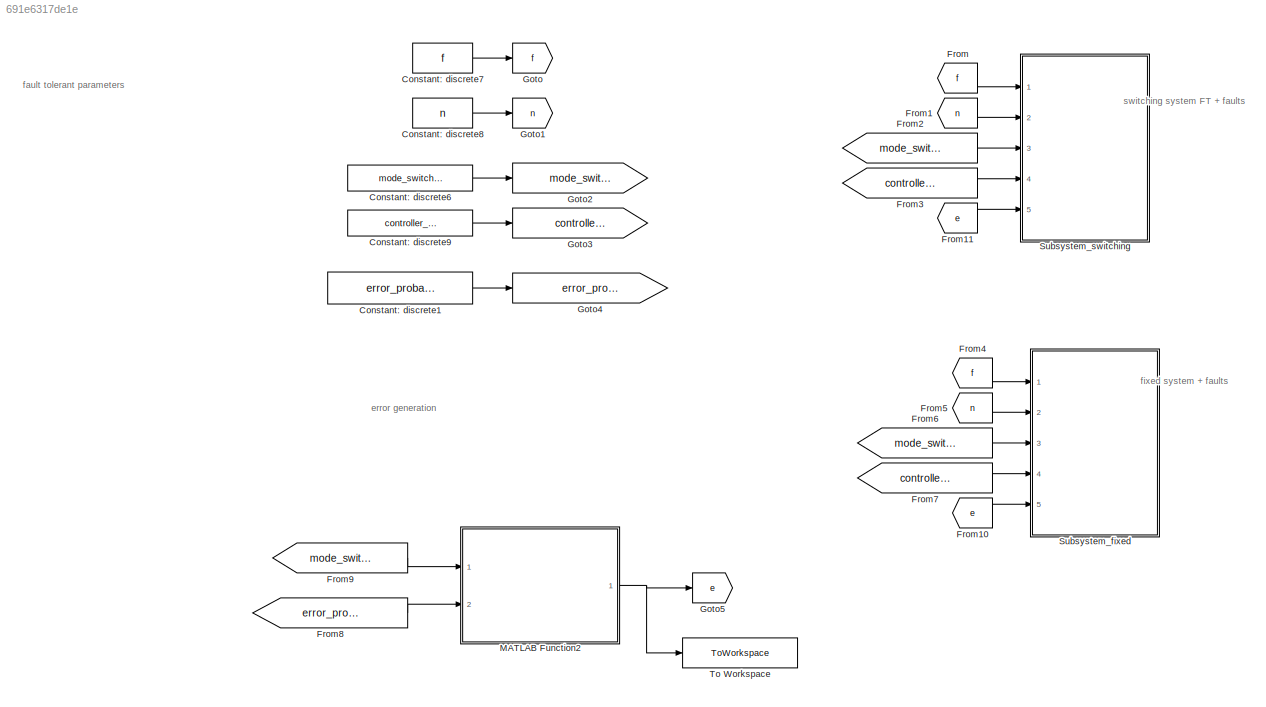
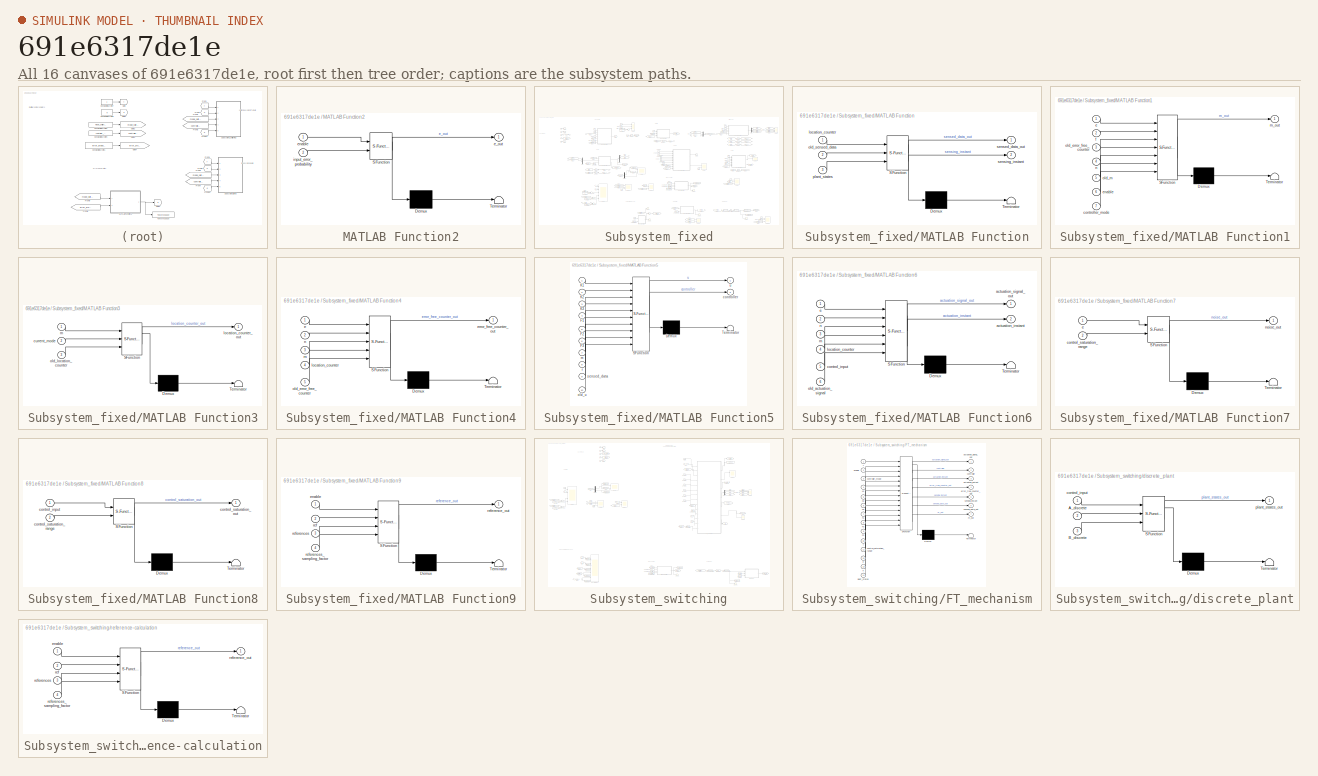
[diagram: thumbnail index - all 16 canvases of the model, root first then tree order]
MODEL slx_691e6317de1e
KIND model
CONFIG AbsTol = auto
CONFIG EnableMultiTasking = off
CONFIG FixedStep = hp
CONFIG MaxStep = auto
CONFIG MinStep = auto
CONFIG RelTol = 1e-3
CONFIG SampleTimeConstraint = Unconstrained
CONFIG Solver = FixedStepAuto
CONFIG SolverName = FixedStepAuto
CONFIG StartTime = 0.0
CONFIG StopTime = Tend
BLOCK [Constant] Constant: discrete1
  SampleTime = Sm
  Value = error_probability
BLOCK [Constant] Constant: discrete6
  SampleTime = Sm
  Value = mode_switching_enable
BLOCK [Constant] Constant: discrete7
  OutDataTypeStr = single
  SampleTime = Sm
  Value = f
BLOCK [Constant] Constant: discrete8
  OutDataTypeStr = single
  SampleTime = Sm
  Value = n
BLOCK [Constant] Constant: discrete9
  SampleTime = Sm
  Value = controller_mode
BLOCK [From] From
  GotoTag = f
BLOCK [From] From1
  GotoTag = n
BLOCK [From] From10
  GotoTag = e
BLOCK [From] From11
  GotoTag = e
BLOCK [From] From2
  GotoTag = mode_switching_enable
BLOCK [From] From3
  GotoTag = controller_mode
BLOCK [From] From4
  GotoTag = f
BLOCK [From] From5
  GotoTag = n
BLOCK [From] From6
  GotoTag = mode_switching_enable
BLOCK [From] From7
  GotoTag = controller_mode
BLOCK [From] From8
  GotoTag = error_probability
BLOCK [From] From9
  GotoTag = mode_switching_enable
BLOCK [Goto] Goto
  GotoTag = f
BLOCK [Goto] Goto1
  GotoTag = n
BLOCK [Goto] Goto2
  GotoTag = mode_switching_enable
BLOCK [Goto] Goto3
  GotoTag = controller_mode
BLOCK [Goto] Goto4
  GotoTag = error_probability
BLOCK [Goto] Goto5
  GotoTag = e
BLOCK [SubSystem] MATLAB Function2
  ErrorFcn = Stateflow.Translate.translate
  PermitHierarchicalResolution = ExplicitOnly
  Ports = [2, 1]
  RequestExecContextInheritance = off
  SFBlockType = MATLAB Function
  SystemSampleTime = Sm
  TreatAsAtomicUnit = on
  Variant = off
BLOCK [Demux] MATLAB Function2/ Demux 
  Outputs = 1
  Ports = [1, 1]
BLOCK [S-Function] MATLAB Function2/ SFunction 
  EnableBusSupport = on
  FunctionName = sf_sfun
  PortCounts = [2 2]
  Ports = [2, 2]
  SFcnIsStateOwnerBlock = off
  SFunctionDeploymentMode = off
  Tag = Stateflow S-Function simulink_ft_fault_injection 21
BLOCK [Terminator] MATLAB Function2/ Terminator 
BLOCK [Outport] MATLAB Function2/e_out
  IconDisplay = Port number
BLOCK [Inport] MATLAB Function2/enable
  IconDisplay = Port number
BLOCK [Inport] MATLAB Function2/input_error_probability
  IconDisplay = Port number
  Port = 2
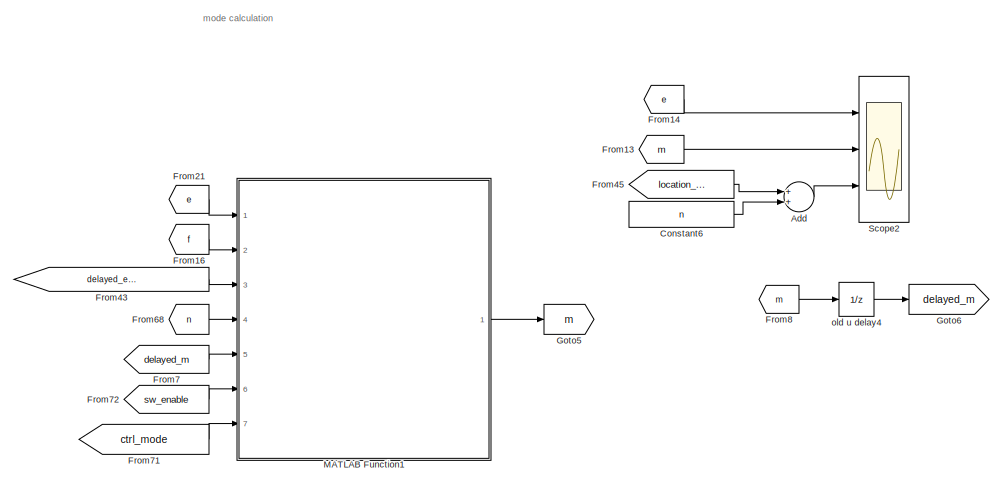
[diagram: Subsystem_fixed - part 1/9, top left region]
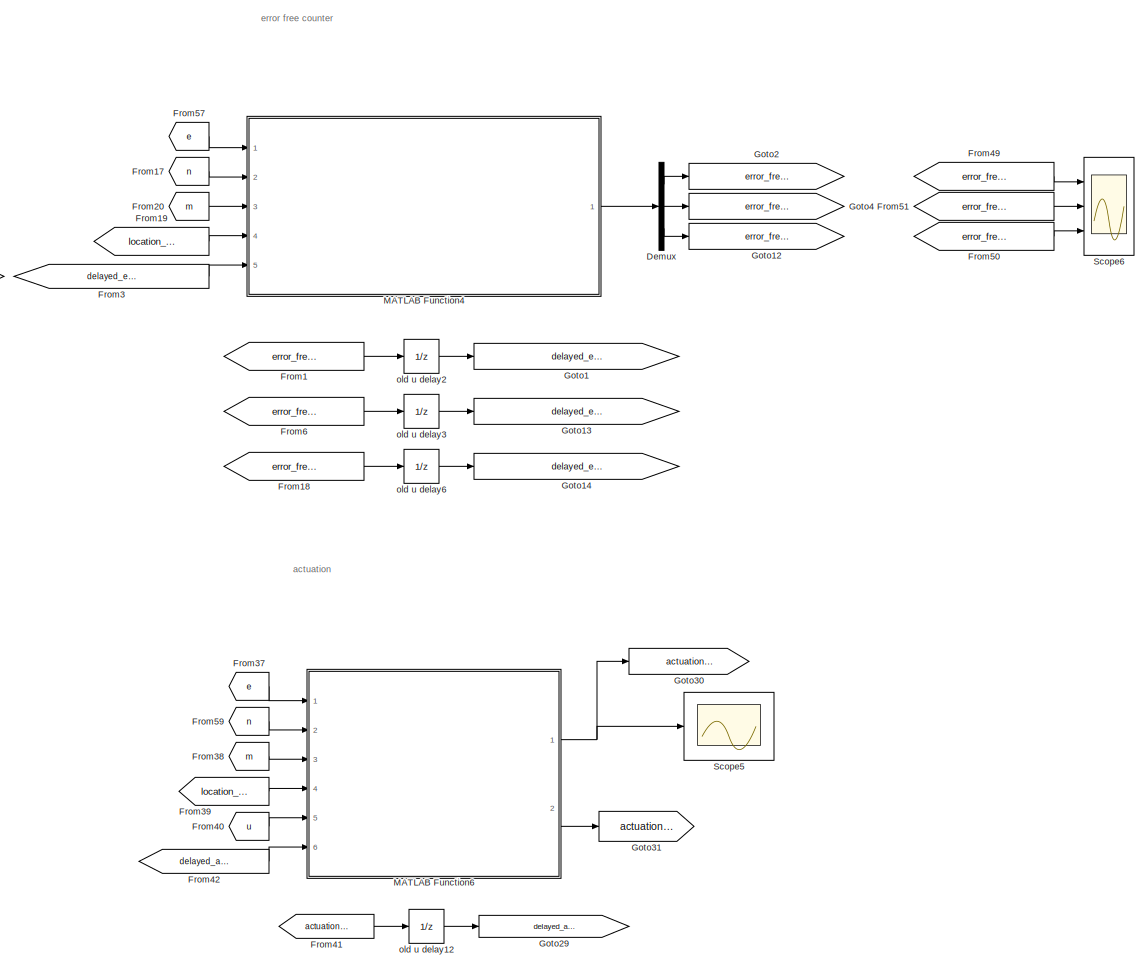
[diagram: Subsystem_fixed - part 2/9, top right region]
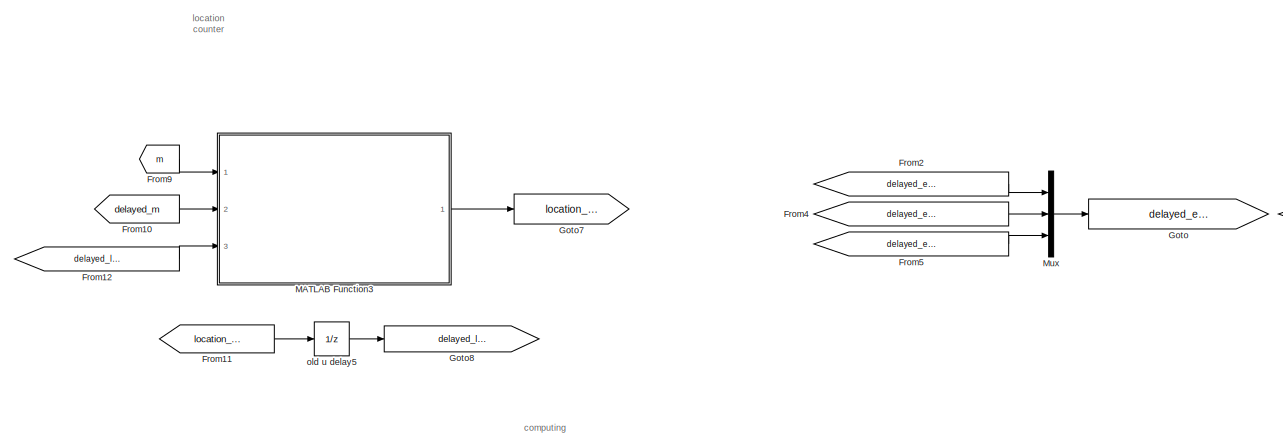
[diagram: Subsystem_fixed - part 3/9, top center region]
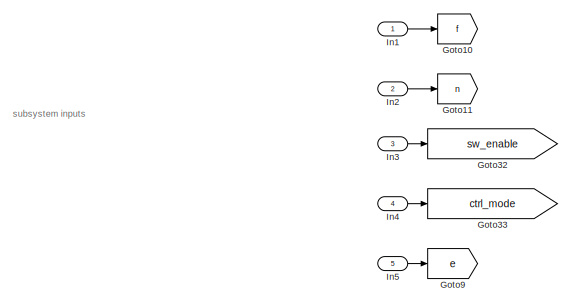
[diagram: Subsystem_fixed - part 4/9, top left region]
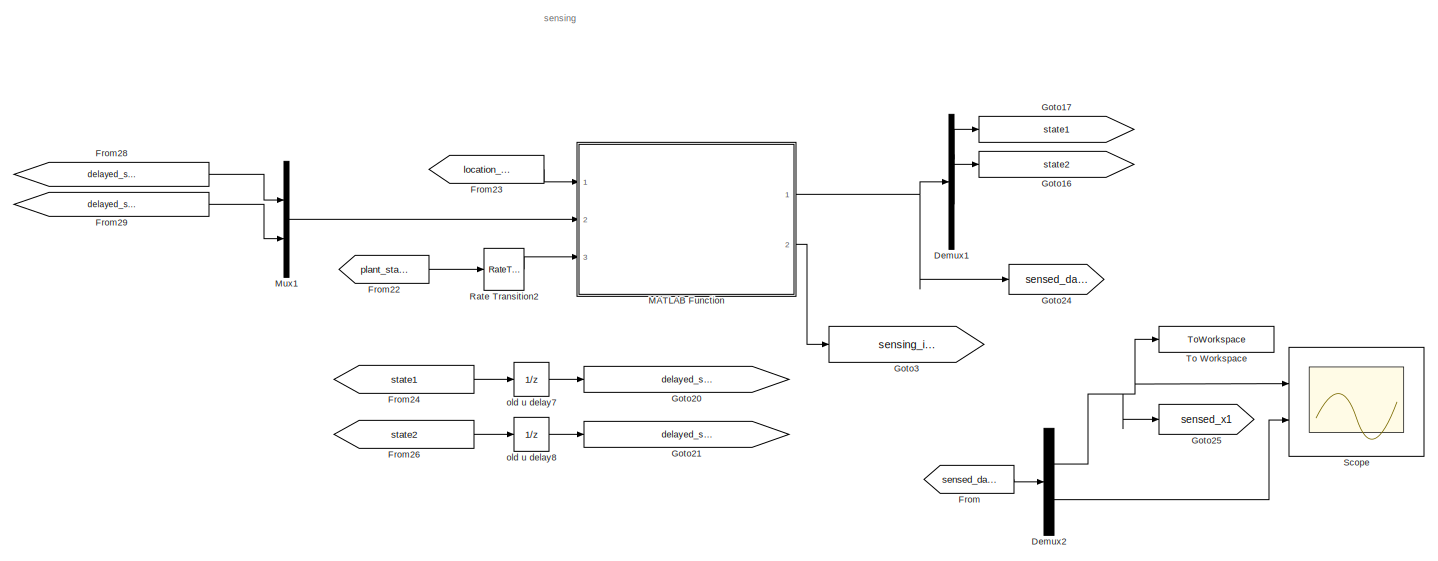
[diagram: Subsystem_fixed - part 5/9, middle left region]
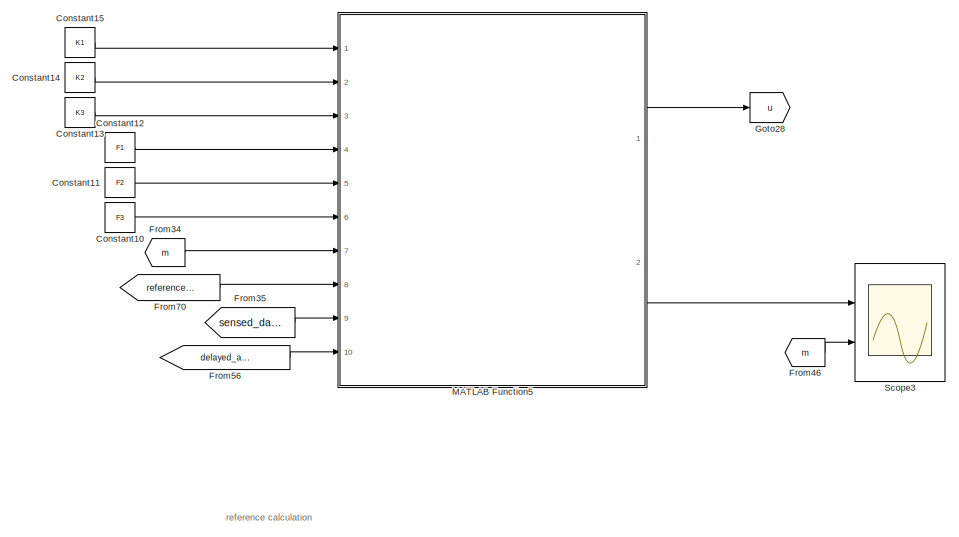
[diagram: Subsystem_fixed - part 6/9, central region]
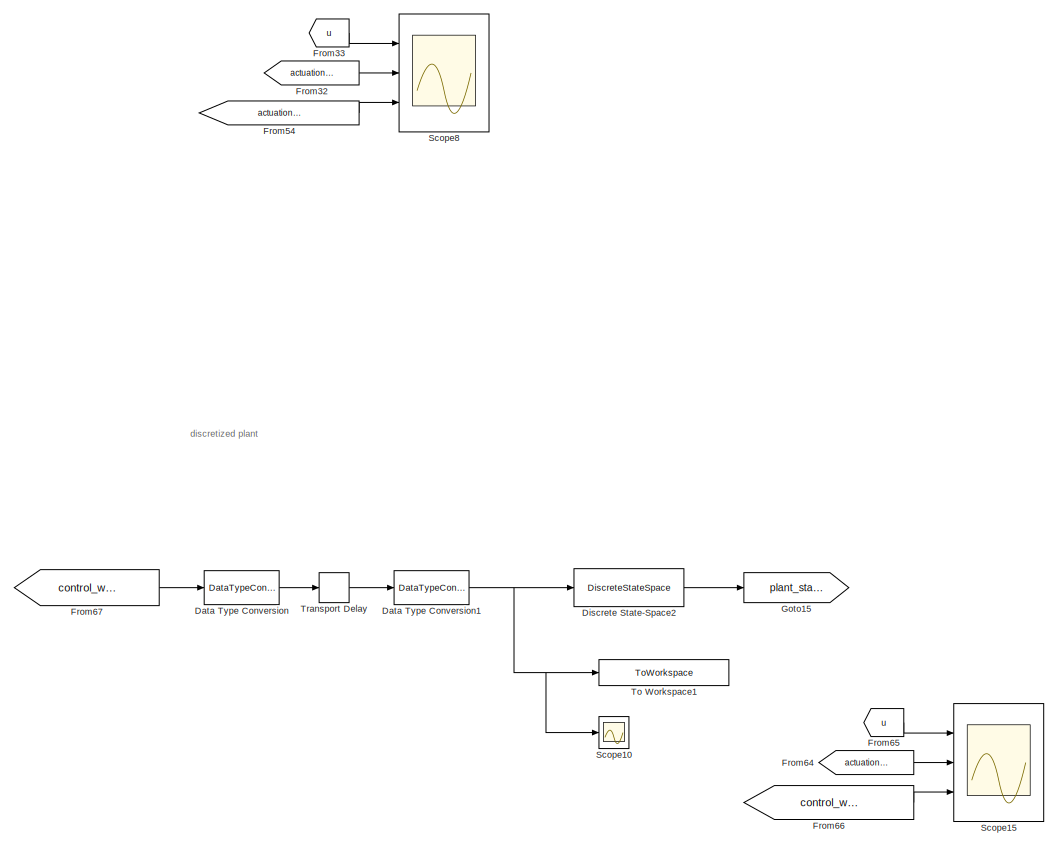
[diagram: Subsystem_fixed - part 7/9, bottom right region]
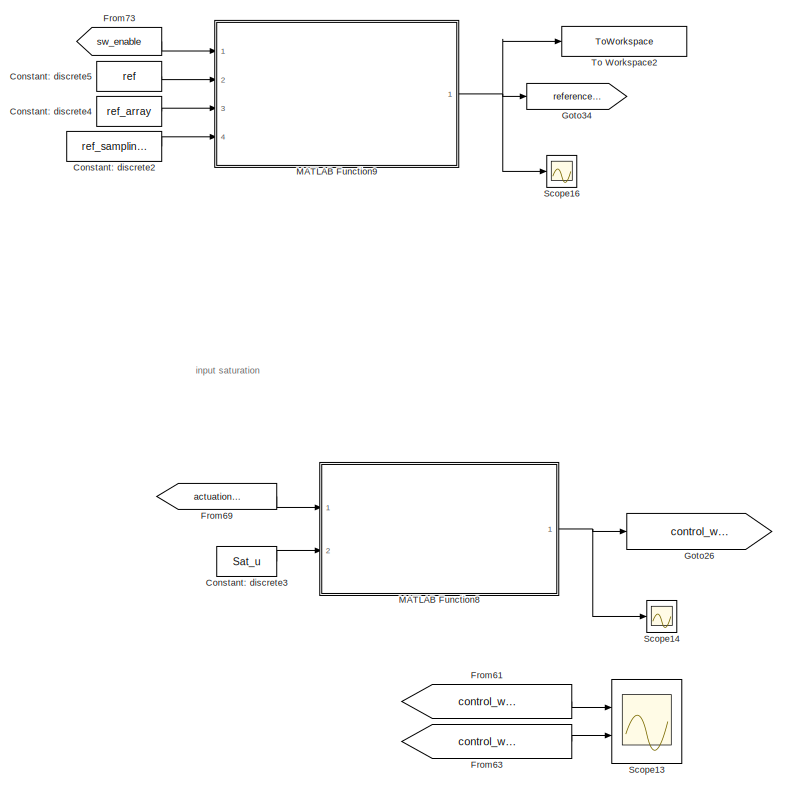
[diagram: Subsystem_fixed - part 8/9, bottom center region]
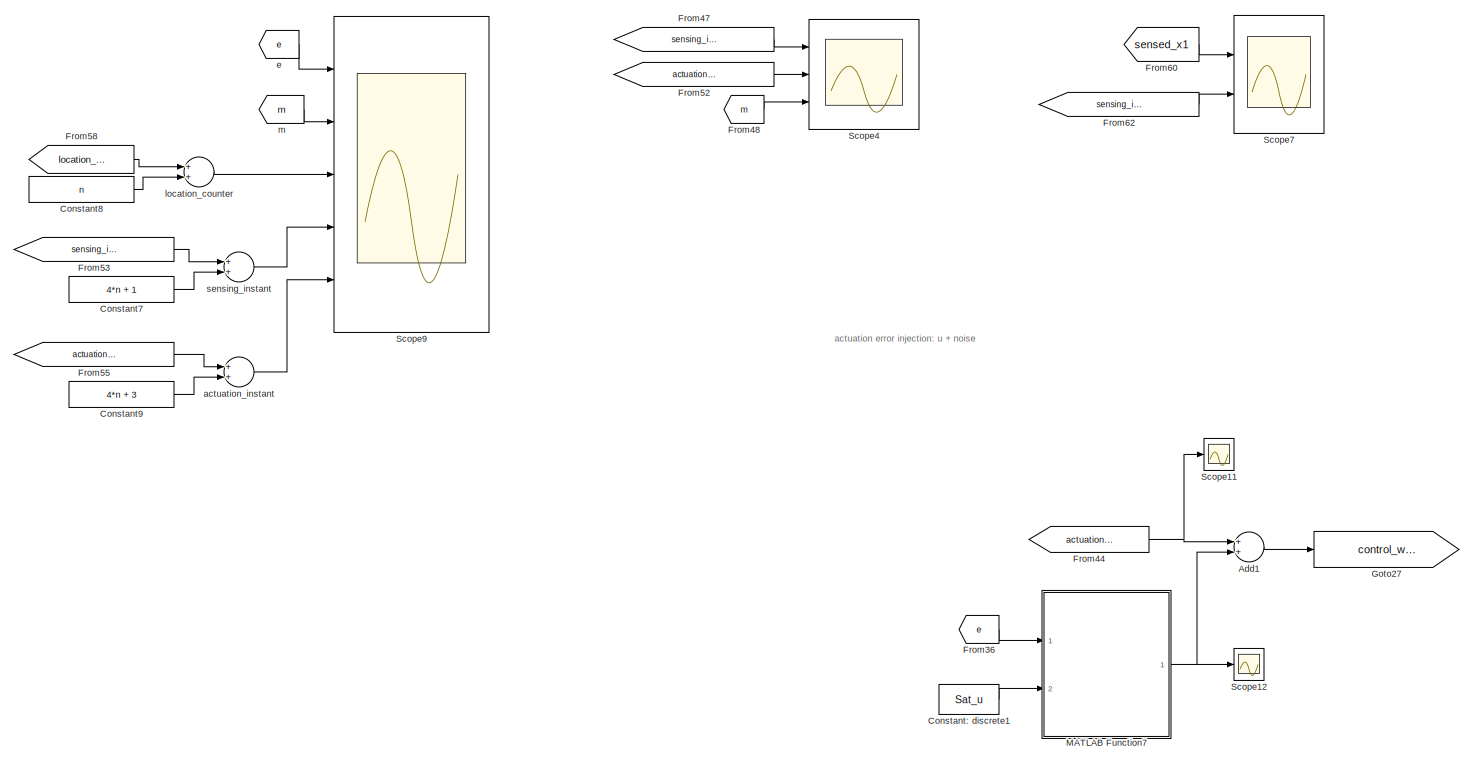
[diagram: Subsystem_fixed - part 9/9, bottom center region]
BLOCK [SubSystem] Subsystem_fixed
  Ports = [5]
  RequestExecContextInheritance = off
  Variant = off
BLOCK [Sum] Subsystem_fixed/Add
  InputSameDT = off
  OutDataTypeStr = Inherit: Inherit via internal rule
  Ports = [2, 1]
  SaturateOnIntegerOverflow = off
BLOCK [Sum] Subsystem_fixed/Add1
  InputSameDT = off
  OutDataTypeStr = Inherit: Inherit via internal rule
  Ports = [2, 1]
  SaturateOnIntegerOverflow = off
BLOCK [Constant] Subsystem_fixed/Constant10
  OutDataTypeStr = single
  SampleTime = Sm
  Value = F3
BLOCK [Constant] Subsystem_fixed/Constant11
  OutDataTypeStr = single
  SampleTime = Sm
  Value = F2
BLOCK [Constant] Subsystem_fixed/Constant12
  OutDataTypeStr = single
  SampleTime = Sm
  Value = F1
BLOCK [Constant] Subsystem_fixed/Constant13
  OutDataTypeStr = single
  SampleTime = Sm
  Value = K3
BLOCK [Constant] Subsystem_fixed/Constant14
  OutDataTypeStr = single
  SampleTime = Sm
  Value = K2
BLOCK [Constant] Subsystem_fixed/Constant15
  OutDataTypeStr = single
  SampleTime = Sm
  Value = K1
BLOCK [Constant] Subsystem_fixed/Constant6
  SampleTime = Sm
  Value = n
BLOCK [Constant] Subsystem_fixed/Constant7
  SampleTime = Sm
  Value = 4*n + 1
BLOCK [Constant] Subsystem_fixed/Constant8
  SampleTime = Sm
  Value = n
BLOCK [Constant] Subsystem_fixed/Constant9
  SampleTime = Sm
  Value = 4*n + 3
BLOCK [Constant] Subsystem_fixed/Constant: discrete1
  OutDataTypeStr = single
  SampleTime = Sm
  Value = Sat_u
BLOCK [Constant] Subsystem_fixed/Constant: discrete2
  OutDataTypeStr = single
  SampleTime = Sm
  Value = ref_sampling_factor
BLOCK [Constant] Subsystem_fixed/Constant: discrete3
  OutDataTypeStr = single
  SampleTime = Sm
  Value = Sat_u
BLOCK [Constant] Subsystem_fixed/Constant: discrete4
  OutDataTypeStr = single
  SampleTime = Sm
  Value = ref_array
BLOCK [Constant] Subsystem_fixed/Constant: discrete5
  OutDataTypeStr = single
  SampleTime = Sm
  Value = ref
BLOCK [DataTypeConversion] Subsystem_fixed/Data Type Conversion
  OutDataTypeStr = double
  RndMeth = Floor
  SaturateOnIntegerOverflow = off
BLOCK [DataTypeConversion] Subsystem_fixed/Data Type Conversion1
  OutDataTypeStr = single
  RndMeth = Floor
  SaturateOnIntegerOverflow = off
BLOCK [Demux] Subsystem_fixed/Demux
  DisplayOption = bar
  Outputs = 3
  Ports = [1, 3]
BLOCK [Demux] Subsystem_fixed/Demux1
  DisplayOption = bar
  Outputs = 2
  Ports = [1, 2]
BLOCK [Demux] Subsystem_fixed/Demux2
  DisplayOption = bar
  Outputs = 2
  Ports = [1, 2]
BLOCK [DiscreteStateSpace] Subsystem_fixed/Discrete State-Space2
  A = Ad_plant
  B = Bd_plant
  C = Cd_plant
  D = Dd_plant
  SampleTime = hp
BLOCK [From] Subsystem_fixed/From
  GotoTag = sensed_data
BLOCK [From] Subsystem_fixed/From1
  GotoTag = error_free_counter_1
BLOCK [From] Subsystem_fixed/From10
  GotoTag = delayed_m
BLOCK [From] Subsystem_fixed/From11
  GotoTag = location_counter
BLOCK [From] Subsystem_fixed/From12
  GotoTag = delayed_location_counter
BLOCK [From] Subsystem_fixed/From13
  GotoTag = m
BLOCK [From] Subsystem_fixed/From14
  GotoTag = e
BLOCK [From] Subsystem_fixed/From16
  GotoTag = f
BLOCK [From] Subsystem_fixed/From17
  GotoTag = n
BLOCK [From] Subsystem_fixed/From18
  GotoTag = error_free_counter_3
BLOCK [From] Subsystem_fixed/From19
  GotoTag = location_counter
BLOCK [From] Subsystem_fixed/From2
  GotoTag = delayed_error_free_counter_1
BLOCK [From] Subsystem_fixed/From20
  GotoTag = m
BLOCK [From] Subsystem_fixed/From21
  GotoTag = e
BLOCK [From] Subsystem_fixed/From22
  GotoTag = plant_states
BLOCK [From] Subsystem_fixed/From23
  GotoTag = location_counter
BLOCK [From] Subsystem_fixed/From24
  GotoTag = state1
BLOCK [From] Subsystem_fixed/From26
  GotoTag = state2
BLOCK [From] Subsystem_fixed/From28
  GotoTag = delayed_state1
BLOCK [From] Subsystem_fixed/From29
  GotoTag = delayed_state2
BLOCK [From] Subsystem_fixed/From3
  GotoTag = delayed_error_free_counter
BLOCK [From] Subsystem_fixed/From32
  GotoTag = actuation_signal
BLOCK [From] Subsystem_fixed/From33
  GotoTag = u
BLOCK [From] Subsystem_fixed/From34
  GotoTag = m
BLOCK [From] Subsystem_fixed/From35
  GotoTag = sensed_data
BLOCK [From] Subsystem_fixed/From36
  GotoTag = e
BLOCK [From] Subsystem_fixed/From37
  GotoTag = e
BLOCK [From] Subsystem_fixed/From38
  GotoTag = m
BLOCK [From] Subsystem_fixed/From39
  GotoTag = location_counter
BLOCK [From] Subsystem_fixed/From4
  GotoTag = delayed_error_free_counter_2
BLOCK [From] Subsystem_fixed/From40
  GotoTag = u
BLOCK [From] Subsystem_fixed/From41
  GotoTag = actuation_signal
BLOCK [From] Subsystem_fixed/From42
  GotoTag = delayed_actuation_signal
BLOCK [From] Subsystem_fixed/From43
  GotoTag = delayed_error_free_counter
BLOCK [From] Subsystem_fixed/From44
  GotoTag = actuation_signal
BLOCK [From] Subsystem_fixed/From45
  GotoTag = location_counter
BLOCK [From] Subsystem_fixed/From46
  GotoTag = m
BLOCK [From] Subsystem_fixed/From47
  GotoTag = sensing_instant
BLOCK [From] Subsystem_fixed/From48
  GotoTag = m
BLOCK [From] Subsystem_fixed/From49
  GotoTag = error_free_counter_1
BLOCK [From] Subsystem_fixed/From5
  GotoTag = delayed_error_free_counter_3
BLOCK [From] Subsystem_fixed/From50
  GotoTag = error_free_counter_3
BLOCK [From] Subsystem_fixed/From51
  GotoTag = error_free_counter_2
BLOCK [From] Subsystem_fixed/From52
  GotoTag = actuation_instant
BLOCK [From] Subsystem_fixed/From53
  GotoTag = sensing_instant
BLOCK [From] Subsystem_fixed/From54
  GotoTag = actuation_instant
BLOCK [From] Subsystem_fixed/From55
  GotoTag = actuation_instant
BLOCK [From] Subsystem_fixed/From56
  GotoTag = delayed_actuation_signal
BLOCK [From] Subsystem_fixed/From57
  GotoTag = e
BLOCK [From] Subsystem_fixed/From58
  GotoTag = location_counter
BLOCK [From] Subsystem_fixed/From59
  GotoTag = n
BLOCK [From] Subsystem_fixed/From6
  GotoTag = error_free_counter_2
BLOCK [From] Subsystem_fixed/From60
  GotoTag = sensed_x1
BLOCK [From] Subsystem_fixed/From61
  GotoTag = control_with_saturation
BLOCK [From] Subsystem_fixed/From62
  GotoTag = sensing_instant
BLOCK [From] Subsystem_fixed/From63
  GotoTag = control_without_saturation
BLOCK [From] Subsystem_fixed/From64
  GotoTag = actuation_signal
BLOCK [From] Subsystem_fixed/From65
  GotoTag = u
BLOCK [From] Subsystem_fixed/From66
  GotoTag = control_with_saturation
BLOCK [From] Subsystem_fixed/From67
  GotoTag = control_with_saturation
BLOCK [From] Subsystem_fixed/From68
  GotoTag = n
BLOCK [From] Subsystem_fixed/From69
  GotoTag = actuation_signal
BLOCK [From] Subsystem_fixed/From7
  GotoTag = delayed_m
BLOCK [From] Subsystem_fixed/From70
  GotoTag = reference_output
BLOCK [From] Subsystem_fixed/From71
  GotoTag = ctrl_mode
BLOCK [From] Subsystem_fixed/From72
  GotoTag = sw_enable
BLOCK [From] Subsystem_fixed/From73
  GotoTag = sw_enable
BLOCK [From] Subsystem_fixed/From8
  GotoTag = m
BLOCK [From] Subsystem_fixed/From9
  GotoTag = m
BLOCK [Goto] Subsystem_fixed/Goto
  GotoTag = delayed_error_free_counter
BLOCK [Goto] Subsystem_fixed/Goto1
  GotoTag = delayed_error_free_counter_1
BLOCK [Goto] Subsystem_fixed/Goto10
  GotoTag = f
BLOCK [Goto] Subsystem_fixed/Goto11
  GotoTag = n
BLOCK [Goto] Subsystem_fixed/Goto12
  GotoTag = error_free_counter_3
BLOCK [Goto] Subsystem_fixed/Goto13
  GotoTag = delayed_error_free_counter_2
BLOCK [Goto] Subsystem_fixed/Goto14
  GotoTag = delayed_error_free_counter_3
BLOCK [Goto] Subsystem_fixed/Goto15
  GotoTag = plant_states
BLOCK [Goto] Subsystem_fixed/Goto16
  GotoTag = state2
BLOCK [Goto] Subsystem_fixed/Goto17
  GotoTag = state1
BLOCK [Goto] Subsystem_fixed/Goto2
  GotoTag = error_free_counter_1
BLOCK [Goto] Subsystem_fixed/Goto20
  GotoTag = delayed_state1
BLOCK [Goto] Subsystem_fixed/Goto21
  GotoTag = delayed_state2
BLOCK [Goto] Subsystem_fixed/Goto24
  GotoTag = sensed_data
BLOCK [Goto] Subsystem_fixed/Goto25
  GotoTag = sensed_x1
BLOCK [Goto] Subsystem_fixed/Goto26
  GotoTag = control_with_saturation
BLOCK [Goto] Subsystem_fixed/Goto27
  GotoTag = control_without_saturation
BLOCK [Goto] Subsystem_fixed/Goto28
  GotoTag = u
BLOCK [Goto] Subsystem_fixed/Goto29
  GotoTag = delayed_actuation_signal
BLOCK [Goto] Subsystem_fixed/Goto3
  GotoTag = sensing_instant
BLOCK [Goto] Subsystem_fixed/Goto30
  GotoTag = actuation_signal
BLOCK [Goto] Subsystem_fixed/Goto31
  GotoTag = actuation_instant
BLOCK [Goto] Subsystem_fixed/Goto32
  GotoTag = sw_enable
BLOCK [Goto] Subsystem_fixed/Goto33
  GotoTag = ctrl_mode
BLOCK [Goto] Subsystem_fixed/Goto34
  GotoTag = reference_output
BLOCK [Goto] Subsystem_fixed/Goto4
  GotoTag = error_free_counter_2
BLOCK [Goto] Subsystem_fixed/Goto5
  GotoTag = m
BLOCK [Goto] Subsystem_fixed/Goto6
  GotoTag = delayed_m
BLOCK [Goto] Subsystem_fixed/Goto7
  GotoTag = location_counter
BLOCK [Goto] Subsystem_fixed/Goto8
  GotoTag = delayed_location_counter
BLOCK [Goto] Subsystem_fixed/Goto9
  GotoTag = e
BLOCK [Inport] Subsystem_fixed/In1
  IconDisplay = Port number
BLOCK [Inport] Subsystem_fixed/In2
  IconDisplay = Port number
  Port = 2
BLOCK [Inport] Subsystem_fixed/In3
  IconDisplay = Port number
  Port = 3
BLOCK [Inport] Subsystem_fixed/In4
  IconDisplay = Port number
  Port = 4
BLOCK [Inport] Subsystem_fixed/In5
  IconDisplay = Port number
  Port = 5
BLOCK [SubSystem] Subsystem_fixed/MATLAB Function
  ErrorFcn = Stateflow.Translate.translate
  PermitHierarchicalResolution = ExplicitOnly
  Ports = [3, 2]
  RequestExecContextInheritance = off
  SFBlockType = MATLAB Function
  TreatAsAtomicUnit = on
  Variant = off
BLOCK [Demux] Subsystem_fixed/MATLAB Function/ Demux 
  Outputs = 1
  Ports = [1, 1]
BLOCK [S-Function] Subsystem_fixed/MATLAB Function/ SFunction 
  EnableBusSupport = on
  FunctionName = sf_sfun
  PortCounts = [3 3]
  Ports = [3, 3]
  SFcnIsStateOwnerBlock = off
  SFunctionDeploymentMode = off
  Tag = Stateflow S-Function simulink_ft_fault_injection 11
BLOCK [Terminator] Subsystem_fixed/MATLAB Function/ Terminator 
BLOCK [Inport] Subsystem_fixed/MATLAB Function/location_counter
  IconDisplay = Port number
BLOCK [Inport] Subsystem_fixed/MATLAB Function/old_sensed_data
  IconDisplay = Port number
  Port = 2
BLOCK [Inport] Subsystem_fixed/MATLAB Function/plant_states
  IconDisplay = Port number
  Port = 3
BLOCK [Outport] Subsystem_fixed/MATLAB Function/sensed_data_out
  IconDisplay = Port number
BLOCK [Outport] Subsystem_fixed/MATLAB Function/sensing_instant
  IconDisplay = Port number
  Port = 2
BLOCK [SubSystem] Subsystem_fixed/MATLAB Function1
  ErrorFcn = Stateflow.Translate.translate
  PermitHierarchicalResolution = ExplicitOnly
  Ports = [7, 1]
  RequestExecContextInheritance = off
  SFBlockType = MATLAB Function
  TreatAsAtomicUnit = on
  Variant = off
BLOCK [Demux] Subsystem_fixed/MATLAB Function1/ Demux 
  Outputs = 1
  Ports = [1, 1]
BLOCK [S-Function] Subsystem_fixed/MATLAB Function1/ SFunction 
  EnableBusSupport = on
  FunctionName = sf_sfun
  PortCounts = [7 2]
  Ports = [7, 2]
  SFcnIsStateOwnerBlock = off
  SFunctionDeploymentMode = off
  Tag = Stateflow S-Function simulink_ft_fault_injection 12
BLOCK [Terminator] Subsystem_fixed/MATLAB Function1/ Terminator 
BLOCK [Inport] Subsystem_fixed/MATLAB Function1/controller_mode
  IconDisplay = Port number
  Port = 7
BLOCK [Inport] Subsystem_fixed/MATLAB Function1/e
  IconDisplay = Port number
BLOCK [Inport] Subsystem_fixed/MATLAB Function1/enable
  IconDisplay = Port number
  Port = 6
BLOCK [Inport] Subsystem_fixed/MATLAB Function1/f
  IconDisplay = Port number
  Port = 2
BLOCK [Outport] Subsystem_fixed/MATLAB Function1/m_out
  IconDisplay = Port number
BLOCK [Inport] Subsystem_fixed/MATLAB Function1/n
  IconDisplay = Port number
  Port = 4
BLOCK [Inport] Subsystem_fixed/MATLAB Function1/old_error_free_counter
  IconDisplay = Port number
  Port = 3
BLOCK [Inport] Subsystem_fixed/MATLAB Function1/old_m
  IconDisplay = Port number
  Port = 5
BLOCK [SubSystem] Subsystem_fixed/MATLAB Function3
  ErrorFcn = Stateflow.Translate.translate
  PermitHierarchicalResolution = ExplicitOnly
  Ports = [3, 1]
  RequestExecContextInheritance = off
  SFBlockType = MATLAB Function
  SystemSampleTime = Sm
  TreatAsAtomicUnit = on
  Variant = off
BLOCK [Demux] Subsystem_fixed/MATLAB Function3/ Demux 
  Outputs = 1
  Ports = [1, 1]
BLOCK [S-Function] Subsystem_fixed/MATLAB Function3/ SFunction 
  EnableBusSupport = on
  FunctionName = sf_sfun
  PortCounts = [3 2]
  Ports = [3, 2]
  SFcnIsStateOwnerBlock = off
  SFunctionDeploymentMode = off
  Tag = Stateflow S-Function simulink_ft_fault_injection 14
BLOCK [Terminator] Subsystem_fixed/MATLAB Function3/ Terminator 
BLOCK [Inport] Subsystem_fixed/MATLAB Function3/current_mode
  IconDisplay = Port number
  Port = 2
BLOCK [Outport] Subsystem_fixed/MATLAB Function3/location_counter_out
  IconDisplay = Port number
BLOCK [Inport] Subsystem_fixed/MATLAB Function3/m
  IconDisplay = Port number
BLOCK [Inport] Subsystem_fixed/MATLAB Function3/old_location_counter
  IconDisplay = Port number
  Port = 3
BLOCK [SubSystem] Subsystem_fixed/MATLAB Function4
  ErrorFcn = Stateflow.Translate.translate
  PermitHierarchicalResolution = ExplicitOnly
  Ports = [5, 1]
  RequestExecContextInheritance = off
  SFBlockType = MATLAB Function
  SystemSampleTime = Sm
  TreatAsAtomicUnit = on
  Variant = off
BLOCK [Demux] Subsystem_fixed/MATLAB Function4/ Demux 
  Outputs = 1
  Ports = [1, 1]
BLOCK [S-Function] Subsystem_fixed/MATLAB Function4/ SFunction 
  EnableBusSupport = on
  FunctionName = sf_sfun
  PortCounts = [5 2]
  Ports = [5, 2]
  SFcnIsStateOwnerBlock = off
  SFunctionDeploymentMode = off
  Tag = Stateflow S-Function simulink_ft_fault_injection 15
BLOCK [Terminator] Subsystem_fixed/MATLAB Function4/ Terminator 
BLOCK [Inport] Subsystem_fixed/MATLAB Function4/e
  IconDisplay = Port number
BLOCK [Outport] Subsystem_fixed/MATLAB Function4/error_free_counter_out
  IconDisplay = Port number
BLOCK [Inport] Subsystem_fixed/MATLAB Function4/location_counter
  IconDisplay = Port number
  Port = 4
BLOCK [Inport] Subsystem_fixed/MATLAB Function4/m
  IconDisplay = Port number
  Port = 3
BLOCK [Inport] Subsystem_fixed/MATLAB Function4/n
  IconDisplay = Port number
  Port = 2
BLOCK [Inport] Subsystem_fixed/MATLAB Function4/old_error_free_counter
  IconDisplay = Port number
  Port = 5
BLOCK [SubSystem] Subsystem_fixed/MATLAB Function5
  ErrorFcn = Stateflow.Translate.translate
  PermitHierarchicalResolution = ExplicitOnly
  Ports = [10, 2]
  RequestExecContextInheritance = off
  SFBlockType = MATLAB Function
  TreatAsAtomicUnit = on
  Variant = off
BLOCK [Demux] Subsystem_fixed/MATLAB Function5/ Demux 
  Outputs = 1
  Ports = [1, 1]
BLOCK [S-Function] Subsystem_fixed/MATLAB Function5/ SFunction 
  EnableBusSupport = on
  FunctionName = sf_sfun
  PortCounts = [10 3]
  Ports = [10, 3]
  SFcnIsStateOwnerBlock = off
  SFunctionDeploymentMode = off
  Tag = Stateflow S-Function simulink_ft_fault_injection 16
BLOCK [Terminator] Subsystem_fixed/MATLAB Function5/ Terminator 
BLOCK [Inport] Subsystem_fixed/MATLAB Function5/F1
  IconDisplay = Port number
  Port = 4
BLOCK [Inport] Subsystem_fixed/MATLAB Function5/F2
  IconDisplay = Port number
  Port = 5
BLOCK [Inport] Subsystem_fixed/MATLAB Function5/F3
  IconDisplay = Port number
  Port = 6
BLOCK [Inport] Subsystem_fixed/MATLAB Function5/K1
  IconDisplay = Port number
BLOCK [Inport] Subsystem_fixed/MATLAB Function5/K2
  IconDisplay = Port number
  Port = 2
BLOCK [Inport] Subsystem_fixed/MATLAB Function5/K3
  IconDisplay = Port number
  Port = 3
BLOCK [Outport] Subsystem_fixed/MATLAB Function5/controller
  IconDisplay = Port number
  Port = 2
BLOCK [Inport] Subsystem_fixed/MATLAB Function5/m
  IconDisplay = Port number
  Port = 7
BLOCK [Inport] Subsystem_fixed/MATLAB Function5/old_u
  IconDisplay = Port number
  Port = 10
BLOCK [Inport] Subsystem_fixed/MATLAB Function5/r
  IconDisplay = Port number
  Port = 8
BLOCK [Inport] Subsystem_fixed/MATLAB Function5/sensed_data
  IconDisplay = Port number
  Port = 9
BLOCK [Outport] Subsystem_fixed/MATLAB Function5/u
  IconDisplay = Port number
BLOCK [SubSystem] Subsystem_fixed/MATLAB Function6
  ErrorFcn = Stateflow.Translate.translate
  PermitHierarchicalResolution = ExplicitOnly
  Ports = [6, 2]
  RequestExecContextInheritance = off
  SFBlockType = MATLAB Function
  TreatAsAtomicUnit = on
  Variant = off
BLOCK [Demux] Subsystem_fixed/MATLAB Function6/ Demux 
  Outputs = 1
  Ports = [1, 1]
BLOCK [S-Function] Subsystem_fixed/MATLAB Function6/ SFunction 
  EnableBusSupport = on
  FunctionName = sf_sfun
  PortCounts = [6 3]
  Ports = [6, 3]
  SFcnIsStateOwnerBlock = off
  SFunctionDeploymentMode = off
  Tag = Stateflow S-Function simulink_ft_fault_injection 17
BLOCK [Terminator] Subsystem_fixed/MATLAB Function6/ Terminator 
BLOCK [Outport] Subsystem_fixed/MATLAB Function6/actuation_instant
  IconDisplay = Port number
  Port = 2
BLOCK [Outport] Subsystem_fixed/MATLAB Function6/actuation_signal_out
  IconDisplay = Port number
BLOCK [Inport] Subsystem_fixed/MATLAB Function6/control_input
  IconDisplay = Port number
  Port = 5
BLOCK [Inport] Subsystem_fixed/MATLAB Function6/e
  IconDisplay = Port number
BLOCK [Inport] Subsystem_fixed/MATLAB Function6/location_counter
  IconDisplay = Port number
  Port = 4
BLOCK [Inport] Subsystem_fixed/MATLAB Function6/m
  IconDisplay = Port number
  Port = 3
BLOCK [Inport] Subsystem_fixed/MATLAB Function6/n
  IconDisplay = Port number
  Port = 2
BLOCK [Inport] Subsystem_fixed/MATLAB Function6/old_actuation_signal
  IconDisplay = Port number
  Port = 6
BLOCK [SubSystem] Subsystem_fixed/MATLAB Function7
  ErrorFcn = Stateflow.Translate.translate
  PermitHierarchicalResolution = ExplicitOnly
  Ports = [2, 1]
  RequestExecContextInheritance = off
  SFBlockType = MATLAB Function
  TreatAsAtomicUnit = on
  Variant = off
BLOCK [Demux] Subsystem_fixed/MATLAB Function7/ Demux 
  Outputs = 1
  Ports = [1, 1]
BLOCK [S-Function] Subsystem_fixed/MATLAB Function7/ SFunction 
  EnableBusSupport = on
  FunctionName = sf_sfun
  PortCounts = [2 2]
  Ports = [2, 2]
  SFcnIsStateOwnerBlock = off
  SFunctionDeploymentMode = off
  Tag = Stateflow S-Function simulink_ft_fault_injection 18
BLOCK [Terminator] Subsystem_fixed/MATLAB Function7/ Terminator 
BLOCK [Inport] Subsystem_fixed/MATLAB Function7/control_saturation_range
  IconDisplay = Port number
  Port = 2
BLOCK [Inport] Subsystem_fixed/MATLAB Function7/e
  IconDisplay = Port number
BLOCK [Outport] Subsystem_fixed/MATLAB Function7/noise_out
  IconDisplay = Port number
BLOCK [SubSystem] Subsystem_fixed/MATLAB Function8
  ErrorFcn = Stateflow.Translate.translate
  PermitHierarchicalResolution = ExplicitOnly
  Ports = [2, 1]
  RequestExecContextInheritance = off
  SFBlockType = MATLAB Function
  TreatAsAtomicUnit = on
  Variant = off
BLOCK [Demux] Subsystem_fixed/MATLAB Function8/ Demux 
  Outputs = 1
  Ports = [1, 1]
BLOCK [S-Function] Subsystem_fixed/MATLAB Function8/ SFunction 
  EnableBusSupport = on
  FunctionName = sf_sfun
  PortCounts = [2 2]
  Ports = [2, 2]
  SFcnIsStateOwnerBlock = off
  SFunctionDeploymentMode = off
  Tag = Stateflow S-Function simulink_ft_fault_injection 19
BLOCK [Terminator] Subsystem_fixed/MATLAB Function8/ Terminator 
BLOCK [Inport] Subsystem_fixed/MATLAB Function8/control_input
  IconDisplay = Port number
BLOCK [Outport] Subsystem_fixed/MATLAB Function8/control_saturation_out
  IconDisplay = Port number
BLOCK [Inport] Subsystem_fixed/MATLAB Function8/control_saturation_range
  IconDisplay = Port number
  Port = 2
BLOCK [SubSystem] Subsystem_fixed/MATLAB Function9
  ErrorFcn = Stateflow.Translate.translate
  PermitHierarchicalResolution = ExplicitOnly
  Ports = [4, 1]
  RequestExecContextInheritance = off
  SFBlockType = MATLAB Function
  TreatAsAtomicUnit = on
  Variant = off
BLOCK [Demux] Subsystem_fixed/MATLAB Function9/ Demux 
  Outputs = 1
  Ports = [1, 1]
BLOCK [S-Function] Subsystem_fixed/MATLAB Function9/ SFunction 
  EnableBusSupport = on
  FunctionName = sf_sfun
  PortCounts = [4 2]
  Ports = [4, 2]
  SFcnIsStateOwnerBlock = off
  SFunctionDeploymentMode = off
  Tag = Stateflow S-Function simulink_ft_fault_injection 20
BLOCK [Terminator] Subsystem_fixed/MATLAB Function9/ Terminator 
BLOCK [Inport] Subsystem_fixed/MATLAB Function9/enable
  IconDisplay = Port number
BLOCK [Inport] Subsystem_fixed/MATLAB Function9/ref
  IconDisplay = Port number
  Port = 2
BLOCK [Outport] Subsystem_fixed/MATLAB Function9/reference_out
  IconDisplay = Port number
BLOCK [Inport] Subsystem_fixed/MATLAB Function9/references
  IconDisplay = Port number
  Port = 3
BLOCK [Inport] Subsystem_fixed/MATLAB Function9/references_sampling_factor
  IconDisplay = Port number
  Port = 4
BLOCK [Mux] Subsystem_fixed/Mux
  DisplayOption = bar
  Inputs = 3
  Ports = [3, 1]
BLOCK [Mux] Subsystem_fixed/Mux1
  DisplayOption = bar
  Inputs = 2
  Ports = [2, 1]
BLOCK [RateTransition] Subsystem_fixed/Rate Transition2
  OutPortSampleTime = Sm
BLOCK [Scope] Subsystem_fixed/Scope
  NumInputPorts = 2
  Ports = [2]
  ScopeSpecificationString = Simulink.scopes.TimeScopeBlockCfg('CurrentConfiguration', extmgr.ConfigurationSet(extmgr.Configuration('Core','General UI',true),extmgr.Configuration('Core','Source UI',true),extmgr.Configuration('Sources','WiredSimulink',true,'DataLoggingVariableName','ScopeData1'),extmgr.Configuration('Visuals','Time Domain',true,'SerializedDisplays',{struct('MinYLimReal','-196.72115','MaxYLimReal','288.90023','...<+1485ch>
BLOCK [Scope] Subsystem_fixed/Scope10
  NumInputPorts = 1
  Ports = [1]
  ScopeSpecificationString = Simulink.scopes.TimeScopeBlockCfg('CurrentConfiguration', extmgr.ConfigurationSet(extmgr.Configuration('Core','General UI',true),extmgr.Configuration('Core','Source UI',true),extmgr.Configuration('Sources','WiredSimulink',true,'DataLoggingVariableName','ScopeData2','SampleTime','S(controller_mode)'),extmgr.Configuration('Visuals','Time Domain',true,'SerializedDisplays',{struct('MinYLimReal','-1.87...<+1475ch>
BLOCK [Scope] Subsystem_fixed/Scope11
  NumInputPorts = 1
  Ports = [1]
  ScopeSpecificationString = Simulink.scopes.TimeScopeBlockCfg('CurrentConfiguration', extmgr.ConfigurationSet(extmgr.Configuration('Core','General UI',true),extmgr.Configuration('Core','Source UI',true),extmgr.Configuration('Sources','WiredSimulink',true,'DataLoggingVariableName','ScopeData3'),extmgr.Configuration('Visuals','Time Domain',true,'SerializedDisplays',{struct('MinYLimReal','-0.00647','MaxYLimReal','0.16922','YLab...<+1454ch>
BLOCK [Scope] Subsystem_fixed/Scope12
  NumInputPorts = 1
  Ports = [1]
  ScopeSpecificationString = Simulink.scopes.TimeScopeBlockCfg('CurrentConfiguration', extmgr.ConfigurationSet(extmgr.Configuration('Core','General UI',true),extmgr.Configuration('Core','Source UI',true),extmgr.Configuration('Sources','WiredSimulink',true,'DataLoggingVariableName','ScopeData1'),extmgr.Configuration('Visuals','Time Domain',true,'SerializedDisplays',{struct('MinYLimReal','-0.18731','MaxYLimReal','1.68578','YLab...<+1404ch>
BLOCK [Scope] Subsystem_fixed/Scope13
  NumInputPorts = 2
  Ports = [2]
  ScopeSpecificationString = Simulink.scopes.TimeScopeBlockCfg('CurrentConfiguration', extmgr.ConfigurationSet(extmgr.Configuration('Core','General UI',true),extmgr.Configuration('Core','Source UI',true),extmgr.Configuration('Sources','WiredSimulink',true,'DataLoggingVariableName','ScopeData2'),extmgr.Configuration('Visuals','Time Domain',true,'SerializedDisplays',{struct('MinYLimReal','-14887718.875','MaxYLimReal','20737839....<+1525ch>
BLOCK [Scope] Subsystem_fixed/Scope14
  NumInputPorts = 1
  Ports = [1]
  ScopeSpecificationString = Simulink.scopes.TimeScopeBlockCfg('CurrentConfiguration', extmgr.ConfigurationSet(extmgr.Configuration('Core','General UI',true),extmgr.Configuration('Core','Source UI',true),extmgr.Configuration('Sources','WiredSimulink',true,'DataLoggingVariableName','ScopeData3'),extmgr.Configuration('Visuals','Time Domain',true,'SerializedDisplays',{struct('MinYLimReal','-1.875','MaxYLimReal','1.875','YLabelRe...<+1456ch>
BLOCK [Scope] Subsystem_fixed/Scope15
  NumInputPorts = 3
  Ports = [3]
  ScopeSpecificationString = Simulink.scopes.TimeScopeBlockCfg('CurrentConfiguration', extmgr.ConfigurationSet(extmgr.Configuration('Core','General UI',true),extmgr.Configuration('Core','Source UI',true),extmgr.Configuration('Sources','WiredSimulink',true,'DataLoggingVariableName','ScopeData4'),extmgr.Configuration('Visuals','Time Domain',true,'SerializedDisplays',{struct('MinYLimReal','-0.1289','MaxYLimReal','0.08879','YLabe...<+1501ch>
BLOCK [Scope] Subsystem_fixed/Scope16
  NumInputPorts = 1
  Ports = [1]
  ScopeSpecificationString = Simulink.scopes.TimeScopeBlockCfg('CurrentConfiguration', extmgr.ConfigurationSet(extmgr.Configuration('Core','General UI',true),extmgr.Configuration('Core','Source UI',true),extmgr.Configuration('Sources','WiredSimulink',true,'DataLoggingVariableName','ScopeData1'),extmgr.Configuration('Visuals','Time Domain',true,'SerializedDisplays',{struct('MinYLimReal','-1.375','MaxYLimReal','2.375','YLabelRe...<+1388ch>
BLOCK [Scope] Subsystem_fixed/Scope2
  NumInputPorts = 3
  Ports = [3]
  ScopeSpecificationString = Simulink.scopes.TimeScopeBlockCfg('CurrentConfiguration', extmgr.ConfigurationSet(extmgr.Configuration('Core','General UI',true),extmgr.Configuration('Core','Source UI',true),extmgr.Configuration('Sources','WiredSimulink',true,'DataLoggingVariableName','ScopeData1'),extmgr.Configuration('Visuals','Time Domain',true,'SerializedDisplays',{struct('MinYLimReal','-0.625','MaxYLimReal','5.625','YLabelRe...<+1461ch>
BLOCK [Scope] Subsystem_fixed/Scope3
  NumInputPorts = 2
  Ports = [2]
  ScopeSpecificationString = Simulink.scopes.TimeScopeBlockCfg('CurrentConfiguration', extmgr.ConfigurationSet(extmgr.Configuration('Core','General UI',true),extmgr.Configuration('Core','Source UI',true),extmgr.Configuration('Sources','WiredSimulink',true,'DataLoggingVariableName','ScopeData3'),extmgr.Configuration('Visuals','Time Domain',true,'SerializedDisplays',{struct('MinYLimReal','0.9','MaxYLimReal','1.1','YLabelReal','...<+1406ch>
BLOCK [Scope] Subsystem_fixed/Scope4
  NumInputPorts = 3
  Ports = [3]
  ScopeSpecificationString = Simulink.scopes.TimeScopeBlockCfg('CurrentConfiguration', extmgr.ConfigurationSet(extmgr.Configuration('Core','General UI',true),extmgr.Configuration('Core','Source UI',true),extmgr.Configuration('Sources','WiredSimulink',true,'DataLoggingVariableName','ScopeData1'),extmgr.Configuration('Visuals','Time Domain',true,'SerializedDisplays',{struct('MinYLimReal','-0.14842','MaxYLimReal','3.22013','YLab...<+1480ch>
BLOCK [Scope] Subsystem_fixed/Scope5
  NumInputPorts = 1
  Ports = [1]
  ScopeSpecificationString = Simulink.scopes.TimeScopeBlockCfg('CurrentConfiguration', extmgr.ConfigurationSet(extmgr.Configuration('Core','General UI',true),extmgr.Configuration('Core','Source UI',true),extmgr.Configuration('Sources','WiredSimulink',true,'DataLoggingVariableName','ScopeData2'),extmgr.Configuration('Visuals','Time Domain',true,'SerializedDisplays',{struct('MinYLimReal','-0.05108','MaxYLimReal','0.16681','YLab...<+1469ch>
BLOCK [Scope] Subsystem_fixed/Scope6
  NumInputPorts = 3
  Ports = [3]
  ScopeSpecificationString = Simulink.scopes.TimeScopeBlockCfg('CurrentConfiguration', extmgr.ConfigurationSet(extmgr.Configuration('Core','General UI',true),extmgr.Configuration('Core','Source UI',true),extmgr.Configuration('Sources','WiredSimulink',true,'DataLoggingVariableName','ScopeData1'),extmgr.Configuration('Visuals','Time Domain',true,'SerializedDisplays',{struct('MinYLimReal','-1.375','MaxYLimReal','12.375','YLabelR...<+1469ch>
BLOCK [Scope] Subsystem_fixed/Scope7
  NumInputPorts = 2
  Ports = [2]
  ScopeSpecificationString = Simulink.scopes.TimeScopeBlockCfg('CurrentConfiguration', extmgr.ConfigurationSet(extmgr.Configuration('Core','General UI',true),extmgr.Configuration('Core','Source UI',true),extmgr.Configuration('Sources','WiredSimulink',true,'DataLoggingVariableName','ScopeData1'),extmgr.Configuration('Visuals','Time Domain',true,'SerializedDisplays',{struct('MinYLimReal','-0.13575','MaxYLimReal','1.22174','YLab...<+1478ch>
BLOCK [Scope] Subsystem_fixed/Scope8
  NumInputPorts = 3
  Ports = [3]
  ScopeSpecificationString = Simulink.scopes.TimeScopeBlockCfg('CurrentConfiguration', extmgr.ConfigurationSet(extmgr.Configuration('Core','General UI',true),extmgr.Configuration('Core','Source UI',true),extmgr.Configuration('Sources','WiredSimulink',true,'DataLoggingVariableName','ScopeData1'),extmgr.Configuration('Visuals','Time Domain',true,'SerializedDisplays',{struct('MinYLimReal','-0.06692','MaxYLimReal','1.04187','YLab...<+1500ch>
BLOCK [Scope] Subsystem_fixed/Scope9
  NumInputPorts = 5
  Ports = [5]
  ScopeSpecificationString = Simulink.scopes.TimeScopeBlockCfg('CurrentConfiguration', extmgr.ConfigurationSet(extmgr.Configuration('Core','General UI',true),extmgr.Configuration('Core','Source UI',true),extmgr.Configuration('Sources','WiredSimulink',true,'DataLoggingVariableName','ScopeData1'),extmgr.Configuration('Visuals','Time Domain',true,'SerializedDisplays',{struct('MinYLimReal','-2.00000','MaxYLimReal','18.00000','YLa...<+1528ch>
BLOCK [ToWorkspace] Subsystem_fixed/To Workspace
  FixptAsFi = on
  MaxDataPoints = inf
  Ports = [1]
  SampleTime = Sm
  Save2DSignal = 3-D array (concatenate along third dimension)
  SaveFormat = Timeseries
  VariableName = sensed_data_x1_fixed
BLOCK [ToWorkspace] Subsystem_fixed/To Workspace1
  FixptAsFi = on
  MaxDataPoints = inf
  Ports = [1]
  SampleTime = Sm
  Save2DSignal = 3-D array (concatenate along third dimension)
  SaveFormat = Timeseries
  VariableName = actuation_signal_u_fixed
BLOCK [ToWorkspace] Subsystem_fixed/To Workspace2
  FixptAsFi = on
  MaxDataPoints = inf
  Ports = [1]
  SampleTime = Sm
  Save2DSignal = 3-D array (concatenate along third dimension)
  SaveFormat = Timeseries
  VariableName = reference_output_fixed
BLOCK [TransportDelay] Subsystem_fixed/Transport Delay
  DelayTime = actuation_delay
  Ports = [1, 1]
BLOCK [Sum] Subsystem_fixed/actuation_instant
  InputSameDT = off
  OutDataTypeStr = Inherit: Inherit via internal rule
  Ports = [2, 1]
  SaturateOnIntegerOverflow = off
BLOCK [From] Subsystem_fixed/e
  GotoTag = e
BLOCK [Sum] Subsystem_fixed/location_counter
  InputSameDT = off
  OutDataTypeStr = Inherit: Inherit via internal rule
  Ports = [2, 1]
  SaturateOnIntegerOverflow = off
BLOCK [From] Subsystem_fixed/m
  GotoTag = m
BLOCK [UnitDelay] Subsystem_fixed/old u delay12
  InputProcessing = Elements as channels (sample based)
  SampleTime = Sm
BLOCK [UnitDelay] Subsystem_fixed/old u delay2
  InputProcessing = Elements as channels (sample based)
  SampleTime = Sm
BLOCK [UnitDelay] Subsystem_fixed/old u delay3
  InputProcessing = Elements as channels (sample based)
  SampleTime = Sm
BLOCK [UnitDelay] Subsystem_fixed/old u delay4
  InputProcessing = Elements as channels (sample based)
  SampleTime = Sm
BLOCK [UnitDelay] Subsystem_fixed/old u delay5
  InputProcessing = Elements as channels (sample based)
  SampleTime = Sm
BLOCK [UnitDelay] Subsystem_fixed/old u delay6
  InputProcessing = Elements as channels (sample based)
  SampleTime = Sm
BLOCK [UnitDelay] Subsystem_fixed/old u delay7
  InputProcessing = Elements as channels (sample based)
  SampleTime = Sm
BLOCK [UnitDelay] Subsystem_fixed/old u delay8
  InputProcessing = Elements as channels (sample based)
  SampleTime = Sm
BLOCK [Sum] Subsystem_fixed/sensing_instant
  InputSameDT = off
  OutDataTypeStr = Inherit: Inherit via internal rule
  Ports = [2, 1]
  SaturateOnIntegerOverflow = off
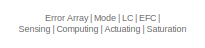
[diagram: Subsystem_switching - part 1/9, top center region]
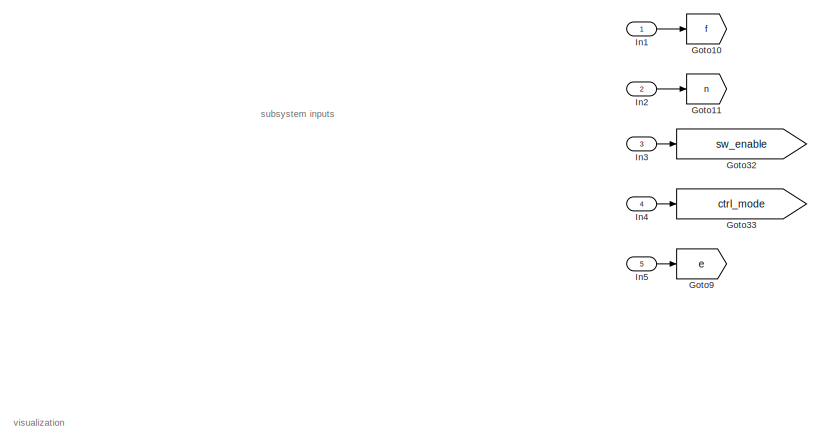
[diagram: Subsystem_switching - part 2/9, top left region]
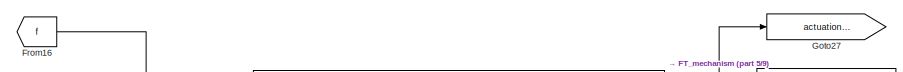
[diagram: Subsystem_switching - part 3/9, top right region]
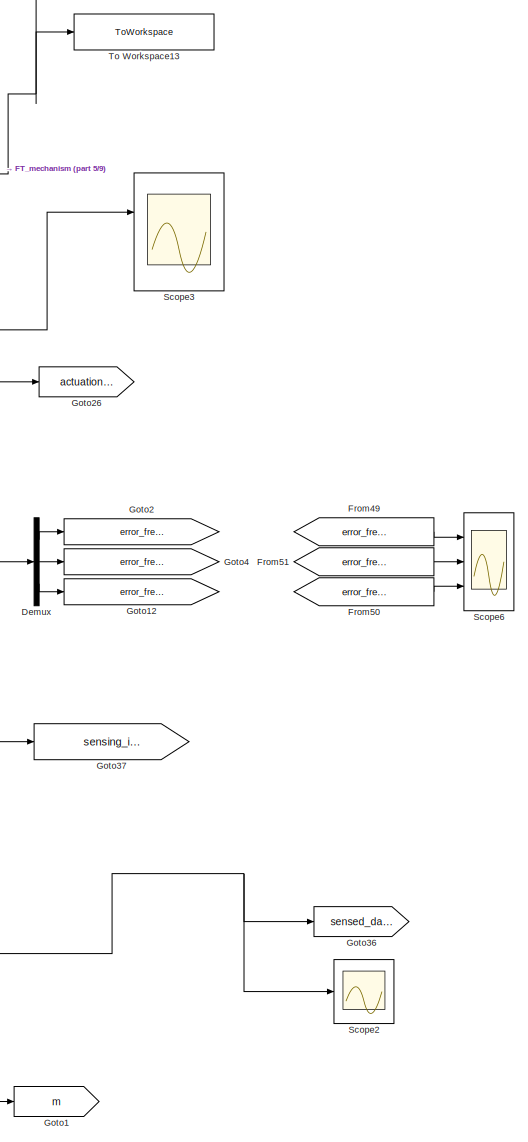
[diagram: Subsystem_switching - part 4/9, middle right region]
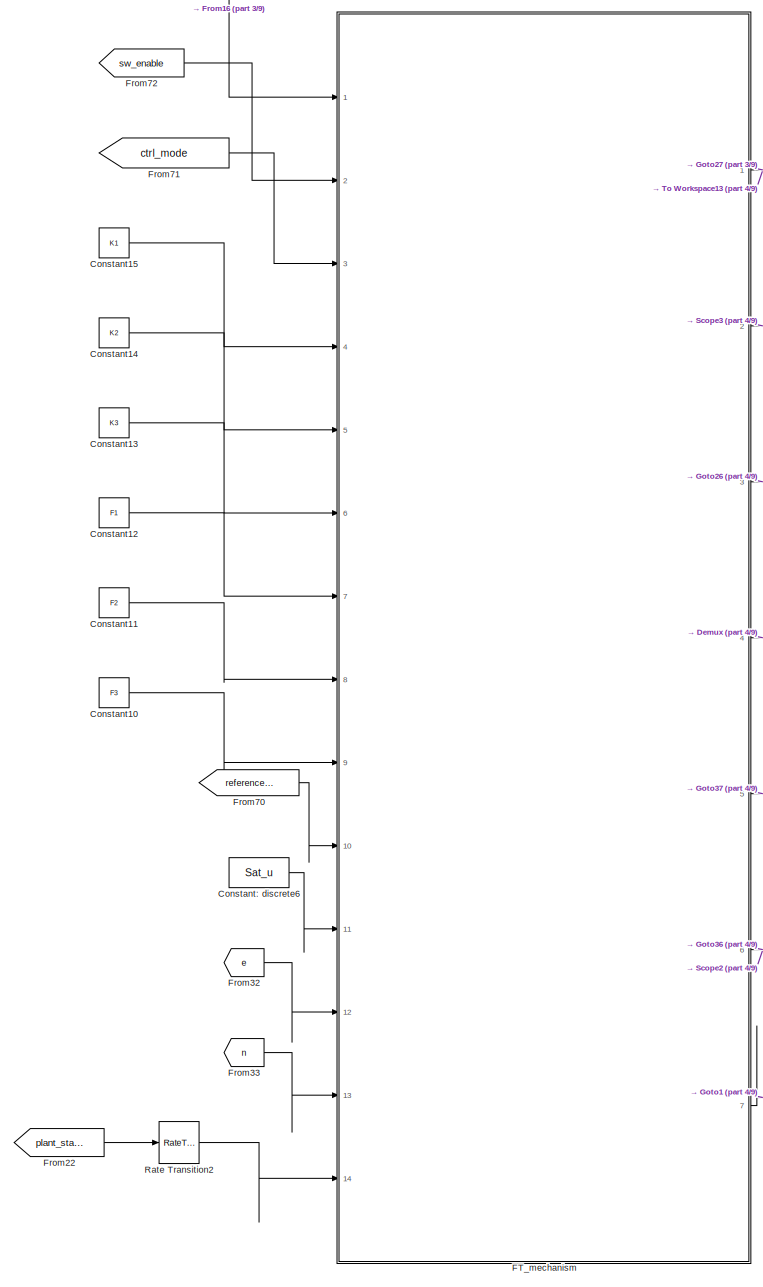
[diagram: Subsystem_switching - part 5/9, middle right region]
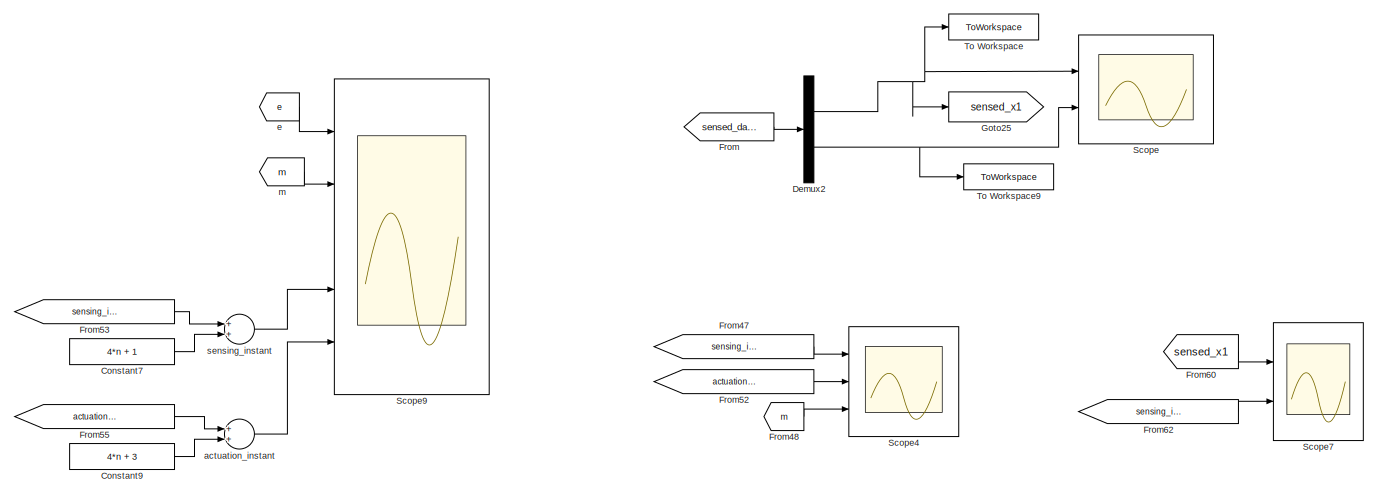
[diagram: Subsystem_switching - part 6/9, middle left region]
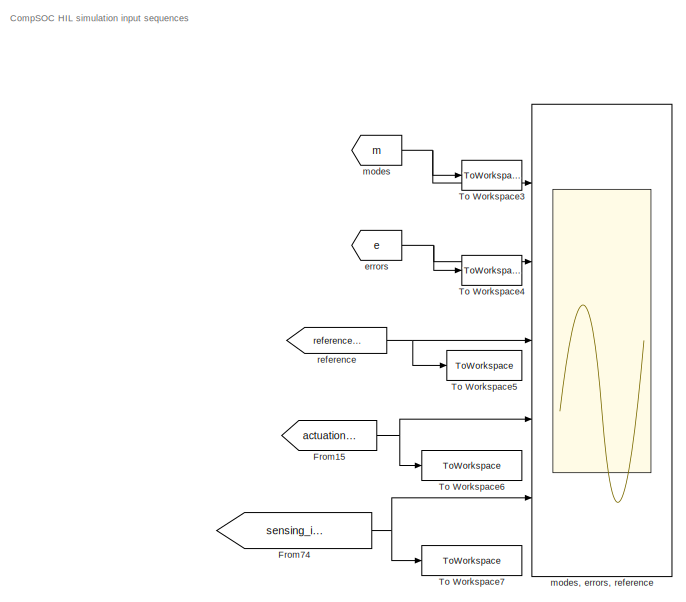
[diagram: Subsystem_switching - part 7/9, bottom left region]
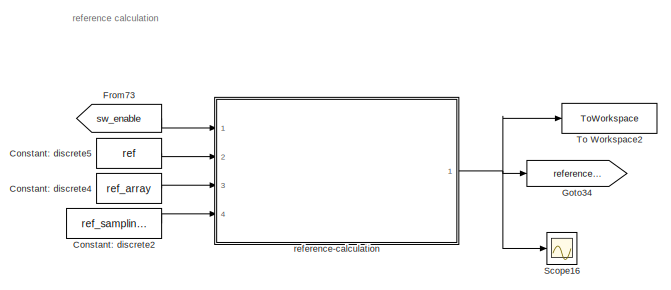
[diagram: Subsystem_switching - part 8/9, bottom center region]
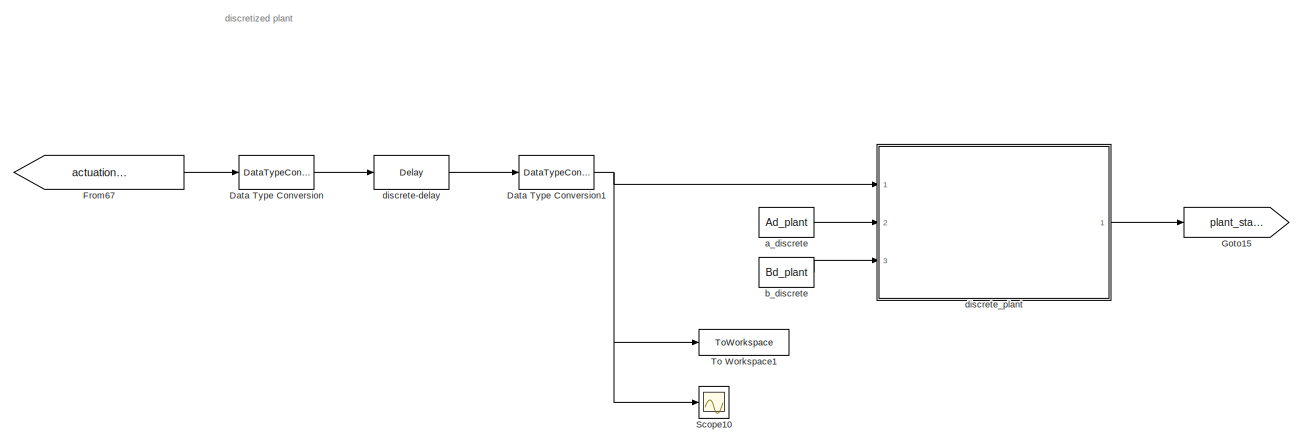
[diagram: Subsystem_switching - part 9/9, bottom right region]
BLOCK [SubSystem] Subsystem_switching
  Ports = [5]
  RequestExecContextInheritance = off
  Variant = off
BLOCK [Constant] Subsystem_switching/Constant10
  OutDataTypeStr = single
  SampleTime = Sm
  Value = F3
BLOCK [Constant] Subsystem_switching/Constant11
  OutDataTypeStr = single
  SampleTime = Sm
  Value = F2
BLOCK [Constant] Subsystem_switching/Constant12
  OutDataTypeStr = single
  SampleTime = Sm
  Value = F1
BLOCK [Constant] Subsystem_switching/Constant13
  OutDataTypeStr = single
  SampleTime = Sm
  Value = K3
BLOCK [Constant] Subsystem_switching/Constant14
  OutDataTypeStr = single
  SampleTime = Sm
  Value = K2
BLOCK [Constant] Subsystem_switching/Constant15
  OutDataTypeStr = single
  SampleTime = Sm
  Value = K1
BLOCK [Constant] Subsystem_switching/Constant7
  SampleTime = Sm
  Value = 4*n + 1
BLOCK [Constant] Subsystem_switching/Constant9
  SampleTime = Sm
  Value = 4*n + 3
BLOCK [Constant] Subsystem_switching/Constant: discrete2
  OutDataTypeStr = single
  SampleTime = Sm
  Value = ref_sampling_factor
BLOCK [Constant] Subsystem_switching/Constant: discrete4
  OutDataTypeStr = single
  SampleTime = Sm
  Value = ref_array
BLOCK [Constant] Subsystem_switching/Constant: discrete5
  OutDataTypeStr = single
  SampleTime = Sm
  Value = ref
BLOCK [Constant] Subsystem_switching/Constant: discrete6
  OutDataTypeStr = single
  SampleTime = Sm
  Value = Sat_u
BLOCK [DataTypeConversion] Subsystem_switching/Data Type Conversion
  OutDataTypeStr = double
  RndMeth = Floor
  SaturateOnIntegerOverflow = off
BLOCK [DataTypeConversion] Subsystem_switching/Data Type Conversion1
  OutDataTypeStr = single
  RndMeth = Floor
  SaturateOnIntegerOverflow = off
BLOCK [Demux] Subsystem_switching/Demux
  DisplayOption = bar
  Outputs = 3
  Ports = [1, 3]
BLOCK [Demux] Subsystem_switching/Demux2
  DisplayOption = bar
  Outputs = 2
  Ports = [1, 2]
BLOCK [SubSystem] Subsystem_switching/FT_mechanism
  ErrorFcn = Stateflow.Translate.translate
  PermitHierarchicalResolution = ExplicitOnly
  Ports = [14, 7]
  RequestExecContextInheritance = off
  SFBlockType = MATLAB Function
  TreatAsAtomicUnit = on
  Variant = off
BLOCK [Demux] Subsystem_switching/FT_mechanism/ Demux 
  Outputs = 1
  Ports = [1, 1]
BLOCK [S-Function] Subsystem_switching/FT_mechanism/ SFunction 
  EnableBusSupport = on
  FunctionName = sf_sfun
  PortCounts = [14 8]
  Ports = [14, 8]
  SFcnIsStateOwnerBlock = off
  SFunctionDeploymentMode = off
  Tag = Stateflow S-Function simulink_ft_fault_injection 6
BLOCK [Terminator] Subsystem_switching/FT_mechanism/ Terminator 
BLOCK [Inport] Subsystem_switching/FT_mechanism/F1
  IconDisplay = Port number
  Port = 7
BLOCK [Inport] Subsystem_switching/FT_mechanism/F2
  IconDisplay = Port number
  Port = 8
BLOCK [Inport] Subsystem_switching/FT_mechanism/F3
  IconDisplay = Port number
  Port = 9
BLOCK [Inport] Subsystem_switching/FT_mechanism/K1
  IconDisplay = Port number
  Port = 4
BLOCK [Inport] Subsystem_switching/FT_mechanism/K2
  IconDisplay = Port number
  Port = 5
BLOCK [Inport] Subsystem_switching/FT_mechanism/K3
  IconDisplay = Port number
  Port = 6
BLOCK [Outport] Subsystem_switching/FT_mechanism/actuation_instant
  IconDisplay = Port number
  Port = 3
BLOCK [Outport] Subsystem_switching/FT_mechanism/actuation_signal_out
  IconDisplay = Port number
BLOCK [Inport] Subsystem_switching/FT_mechanism/control_saturation_range
  IconDisplay = Port number
  Port = 11
BLOCK [Outport] Subsystem_switching/FT_mechanism/controller
  IconDisplay = Port number
  Port = 2
BLOCK [Inport] Subsystem_switching/FT_mechanism/controller_mode
  IconDisplay = Port number
  Port = 3
BLOCK [Inport] Subsystem_switching/FT_mechanism/e
  IconDisplay = Port number
  Port = 12
BLOCK [Inport] Subsystem_switching/FT_mechanism/enable
  IconDisplay = Port number
  Port = 2
BLOCK [Outport] Subsystem_switching/FT_mechanism/error_free_counter_out
  IconDisplay = Port number
  Port = 4
BLOCK [Inport] Subsystem_switching/FT_mechanism/f
  IconDisplay = Port number
BLOCK [Outport] Subsystem_switching/FT_mechanism/m_out
  IconDisplay = Port number
  Port = 7
BLOCK [Inport] Subsystem_switching/FT_mechanism/n
  IconDisplay = Port number
  Port = 13
BLOCK [Inport] Subsystem_switching/FT_mechanism/plant_states
  IconDisplay = Port number
  Port = 14
BLOCK [Inport] Subsystem_switching/FT_mechanism/r
  IconDisplay = Port number
  Port = 10
BLOCK [Outport] Subsystem_switching/FT_mechanism/sensed_data_out
  IconDisplay = Port number
  Port = 6
BLOCK [Outport] Subsystem_switching/FT_mechanism/sensing_instant
  IconDisplay = Port number
  Port = 5
BLOCK [From] Subsystem_switching/From
  GotoTag = sensed_data
BLOCK [From] Subsystem_switching/From15
  GotoTag = actuation_instant
BLOCK [From] Subsystem_switching/From16
  GotoTag = f
BLOCK [From] Subsystem_switching/From22
  GotoTag = plant_states
BLOCK [From] Subsystem_switching/From32
  GotoTag = e
BLOCK [From] Subsystem_switching/From33
  GotoTag = n
BLOCK [From] Subsystem_switching/From47
  GotoTag = sensing_instant
BLOCK [From] Subsystem_switching/From48
  GotoTag = m
BLOCK [From] Subsystem_switching/From49
  GotoTag = error_free_counter_1
BLOCK [From] Subsystem_switching/From50
  GotoTag = error_free_counter_3
BLOCK [From] Subsystem_switching/From51
  GotoTag = error_free_counter_2
BLOCK [From] Subsystem_switching/From52
  GotoTag = actuation_instant
BLOCK [From] Subsystem_switching/From53
  GotoTag = sensing_instant
BLOCK [From] Subsystem_switching/From55
  GotoTag = actuation_instant
BLOCK [From] Subsystem_switching/From60
  GotoTag = sensed_x1
BLOCK [From] Subsystem_switching/From62
  GotoTag = sensing_instant
BLOCK [From] Subsystem_switching/From67
  GotoTag = actuation_signal
BLOCK [From] Subsystem_switching/From70
  GotoTag = reference_output
BLOCK [From] Subsystem_switching/From71
  GotoTag = ctrl_mode
BLOCK [From] Subsystem_switching/From72
  GotoTag = sw_enable
BLOCK [From] Subsystem_switching/From73
  GotoTag = sw_enable
BLOCK [From] Subsystem_switching/From74
  GotoTag = sensing_instant
BLOCK [Goto] Subsystem_switching/Goto1
  GotoTag = m
BLOCK [Goto] Subsystem_switching/Goto10
  GotoTag = f
BLOCK [Goto] Subsystem_switching/Goto11
  GotoTag = n
BLOCK [Goto] Subsystem_switching/Goto12
  GotoTag = error_free_counter_3
BLOCK [Goto] Subsystem_switching/Goto15
  GotoTag = plant_states
BLOCK [Goto] Subsystem_switching/Goto2
  GotoTag = error_free_counter_1
BLOCK [Goto] Subsystem_switching/Goto25
  GotoTag = sensed_x1
BLOCK [Goto] Subsystem_switching/Goto26
  GotoTag = actuation_instant
BLOCK [Goto] Subsystem_switching/Goto27
  GotoTag = actuation_signal
BLOCK [Goto] Subsystem_switching/Goto32
  GotoTag = sw_enable
BLOCK [Goto] Subsystem_switching/Goto33
  GotoTag = ctrl_mode
BLOCK [Goto] Subsystem_switching/Goto34
  GotoTag = reference_output
BLOCK [Goto] Subsystem_switching/Goto36
  GotoTag = sensed_data
BLOCK [Goto] Subsystem_switching/Goto37
  GotoTag = sensing_instant
BLOCK [Goto] Subsystem_switching/Goto4
  GotoTag = error_free_counter_2
BLOCK [Goto] Subsystem_switching/Goto9
  GotoTag = e
BLOCK [Inport] Subsystem_switching/In1
  IconDisplay = Port number
BLOCK [Inport] Subsystem_switching/In2
  IconDisplay = Port number
  Port = 2
BLOCK [Inport] Subsystem_switching/In3
  IconDisplay = Port number
  Port = 3
BLOCK [Inport] Subsystem_switching/In4
  IconDisplay = Port number
  Port = 4
BLOCK [Inport] Subsystem_switching/In5
  IconDisplay = Port number
  Port = 5
BLOCK [RateTransition] Subsystem_switching/Rate Transition2
  OutPortSampleTime = Sm
BLOCK [Scope] Subsystem_switching/Scope
  NumInputPorts = 2
  Ports = [2]
  ScopeSpecificationString = Simulink.scopes.TimeScopeBlockCfg('CurrentConfiguration', extmgr.ConfigurationSet(extmgr.Configuration('Core','General UI',true),extmgr.Configuration('Core','Source UI',true),extmgr.Configuration('Sources','WiredSimulink',true,'DataLoggingVariableName','ScopeData1'),extmgr.Configuration('Visuals','Time Domain',true,'SerializedDisplays',{struct('MinYLimReal','-0.04015','MaxYLimReal','0.06015','YLab...<+1471ch>
BLOCK [Scope] Subsystem_switching/Scope10
  NumInputPorts = 1
  Ports = [1]
  ScopeSpecificationString = Simulink.scopes.TimeScopeBlockCfg('CurrentConfiguration', extmgr.ConfigurationSet(extmgr.Configuration('Core','General UI',true),extmgr.Configuration('Core','Source UI',true),extmgr.Configuration('Sources','WiredSimulink',true,'DataLoggingVariableName','ScopeData2','SampleTime','S(controller_mode)'),extmgr.Configuration('Visuals','Time Domain',true,'SerializedDisplays',{struct('MinYLimReal','-0.35...<+1487ch>
BLOCK [Scope] Subsystem_switching/Scope16
  NumInputPorts = 1
  Ports = [1]
  ScopeSpecificationString = Simulink.scopes.TimeScopeBlockCfg('CurrentConfiguration', extmgr.ConfigurationSet(extmgr.Configuration('Core','General UI',true),extmgr.Configuration('Core','Source UI',true),extmgr.Configuration('Sources','WiredSimulink',true,'DataLoggingVariableName','ScopeData1'),extmgr.Configuration('Visuals','Time Domain',true,'SerializedDisplays',{struct('MinYLimReal','-1.375','MaxYLimReal','2.375','YLabelRe...<+1388ch>
BLOCK [Scope] Subsystem_switching/Scope2
  NumInputPorts = 1
  Ports = [1]
  ScopeSpecificationString = Simulink.scopes.TimeScopeBlockCfg('CurrentConfiguration', extmgr.ConfigurationSet(extmgr.Configuration('Core','General UI',true),extmgr.Configuration('Core','Source UI',true),extmgr.Configuration('Sources','WiredSimulink',true,'DataLoggingVariableName','ScopeData1'),extmgr.Configuration('Visuals','Time Domain',true,'SerializedDisplays',{struct('MinYLimReal','-0.61443','MaxYLimReal','0.39931','YLab...<+1561ch>
BLOCK [Scope] Subsystem_switching/Scope3
  NumInputPorts = 2
  Ports = [2]
  ScopeSpecificationString = Simulink.scopes.TimeScopeBlockCfg('CurrentConfiguration', extmgr.ConfigurationSet(extmgr.Configuration('Core','General UI',true),extmgr.Configuration('Core','Source UI',true),extmgr.Configuration('Sources','WiredSimulink',true,'DataLoggingVariableName','ScopeData3'),extmgr.Configuration('Visuals','Time Domain',true,'SerializedDisplays',{struct('MinYLimReal','0.9','MaxYLimReal','1.1','YLabelReal','...<+1406ch>
BLOCK [Scope] Subsystem_switching/Scope4
  NumInputPorts = 3
  Ports = [3]
  ScopeSpecificationString = Simulink.scopes.TimeScopeBlockCfg('CurrentConfiguration', extmgr.ConfigurationSet(extmgr.Configuration('Core','General UI',true),extmgr.Configuration('Core','Source UI',true),extmgr.Configuration('Sources','WiredSimulink',true,'DataLoggingVariableName','ScopeData1'),extmgr.Configuration('Visuals','Time Domain',true,'SerializedDisplays',{struct('MinYLimReal','-0.375','MaxYLimReal','3.375','YLabelRe...<+1489ch>
BLOCK [Scope] Subsystem_switching/Scope6
  NumInputPorts = 3
  Ports = [3]
  ScopeSpecificationString = Simulink.scopes.TimeScopeBlockCfg('CurrentConfiguration', extmgr.ConfigurationSet(extmgr.Configuration('Core','General UI',true),extmgr.Configuration('Core','Source UI',true),extmgr.Configuration('Sources','WiredSimulink',true,'DataLoggingVariableName','ScopeData1'),extmgr.Configuration('Visuals','Time Domain',true,'SerializedDisplays',{struct('MinYLimReal','-1.375','MaxYLimReal','12.375','YLabelR...<+1469ch>
BLOCK [Scope] Subsystem_switching/Scope7
  NumInputPorts = 2
  Ports = [2]
  ScopeSpecificationString = Simulink.scopes.TimeScopeBlockCfg('CurrentConfiguration', extmgr.ConfigurationSet(extmgr.Configuration('Core','General UI',true),extmgr.Configuration('Core','Source UI',true),extmgr.Configuration('Sources','WiredSimulink',true,'DataLoggingVariableName','ScopeData1'),extmgr.Configuration('Visuals','Time Domain',true,'SerializedDisplays',{struct('MinYLimReal','-0.15888','MaxYLimReal','1.12876','YLab...<+1478ch>
BLOCK [Scope] Subsystem_switching/Scope9
  NumInputPorts = 5
  Ports = [5]
  ScopeSpecificationString = Simulink.scopes.TimeScopeBlockCfg('CurrentConfiguration', extmgr.ConfigurationSet(extmgr.Configuration('Core','General UI',true),extmgr.Configuration('Core','Source UI',true),extmgr.Configuration('Sources','WiredSimulink',true,'DataLoggingVariableName','ScopeData1'),extmgr.Configuration('Visuals','Time Domain',true,'SerializedDisplays',{struct('MinYLimReal','-2.00000','MaxYLimReal','18.00000','YLa...<+1528ch>
BLOCK [ToWorkspace] Subsystem_switching/To Workspace
  FixptAsFi = on
  MaxDataPoints = inf
  Ports = [1]
  SampleTime = Sm
  Save2DSignal = 3-D array (concatenate along third dimension)
  SaveFormat = Timeseries
  VariableName = sensed_data_x1
BLOCK [ToWorkspace] Subsystem_switching/To Workspace1
  FixptAsFi = on
  MaxDataPoints = inf
  Ports = [1]
  SampleTime = Sm
  Save2DSignal = 3-D array (concatenate along third dimension)
  SaveFormat = Timeseries
  VariableName = actuation_signal_u
BLOCK [ToWorkspace] Subsystem_switching/To Workspace13
  FixptAsFi = on
  MaxDataPoints = inf
  Ports = [1]
  SampleTime = Sm
  Save2DSignal = 3-D array (concatenate along third dimension)
  SaveFormat = Timeseries
  VariableName = actuation_signal
BLOCK [ToWorkspace] Subsystem_switching/To Workspace2
  FixptAsFi = on
  MaxDataPoints = inf
  Ports = [1]
  SampleTime = Sm
  Save2DSignal = 3-D array (concatenate along third dimension)
  SaveFormat = Timeseries
  VariableName = reference_output
BLOCK [ToWorkspace] Subsystem_switching/To Workspace3
  FixptAsFi = on
  MaxDataPoints = inf
  Ports = [1]
  SampleTime = Sm
  Save2DSignal = 3-D array (concatenate along third dimension)
  SaveFormat = Timeseries
  VariableName = ws_modes
BLOCK [ToWorkspace] Subsystem_switching/To Workspace4
  FixptAsFi = on
  MaxDataPoints = inf
  Ports = [1]
  SampleTime = Sm
  Save2DSignal = 3-D array (concatenate along third dimension)
  SaveFormat = Timeseries
  VariableName = ws_errors
BLOCK [ToWorkspace] Subsystem_switching/To Workspace5
  FixptAsFi = on
  MaxDataPoints = inf
  Ports = [1]
  SampleTime = Sm
  Save2DSignal = 3-D array (concatenate along third dimension)
  SaveFormat = Timeseries
  VariableName = ws_reference
BLOCK [ToWorkspace] Subsystem_switching/To Workspace6
  FixptAsFi = on
  MaxDataPoints = inf
  Ports = [1]
  SampleTime = Sm
  Save2DSignal = 3-D array (concatenate along third dimension)
  SaveFormat = Timeseries
  VariableName = ws_actuation_instant
BLOCK [ToWorkspace] Subsystem_switching/To Workspace7
  FixptAsFi = on
  MaxDataPoints = inf
  Ports = [1]
  SampleTime = Sm
  Save2DSignal = 3-D array (concatenate along third dimension)
  SaveFormat = Timeseries
  VariableName = ws_sensing_instant
BLOCK [ToWorkspace] Subsystem_switching/To Workspace9
  FixptAsFi = on
  MaxDataPoints = inf
  Ports = [1]
  SampleTime = Sm
  Save2DSignal = 3-D array (concatenate along third dimension)
  SaveFormat = Timeseries
  VariableName = sensed_data_x2
BLOCK [Constant] Subsystem_switching/a_discrete
  OutDataTypeStr = single
  SampleTime = hp
  Value = Ad_plant
BLOCK [Sum] Subsystem_switching/actuation_instant
  InputSameDT = off
  OutDataTypeStr = Inherit: Inherit via internal rule
  Ports = [2, 1]
  SaturateOnIntegerOverflow = off
BLOCK [Constant] Subsystem_switching/b_discrete
  OutDataTypeStr = single
  SampleTime = hp
  Value = Bd_plant
BLOCK [Delay] Subsystem_switching/discrete-delay
  DelayLength = delay_length
  InputPortMap = u0
  Ports = [1, 1]
  SampleTime = hp
BLOCK [SubSystem] Subsystem_switching/discrete_plant
  ErrorFcn = Stateflow.Translate.translate
  PermitHierarchicalResolution = ExplicitOnly
  Ports = [3, 1]
  RequestExecContextInheritance = off
  SFBlockType = MATLAB Function
  SystemSampleTime = hp
  TreatAsAtomicUnit = on
  Variant = off
BLOCK [Demux] Subsystem_switching/discrete_plant/ Demux 
  Outputs = 1
  Ports = [1, 1]
BLOCK [S-Function] Subsystem_switching/discrete_plant/ SFunction 
  EnableBusSupport = on
  FunctionName = sf_sfun
  PortCounts = [3 2]
  Ports = [3, 2]
  SFcnIsStateOwnerBlock = off
  SFunctionDeploymentMode = off
  Tag = Stateflow S-Function simulink_ft_fault_injection 3
BLOCK [Terminator] Subsystem_switching/discrete_plant/ Terminator 
BLOCK [Inport] Subsystem_switching/discrete_plant/A_discrete
  IconDisplay = Port number
  Port = 2
BLOCK [Inport] Subsystem_switching/discrete_plant/B_discrete
  IconDisplay = Port number
  Port = 3
BLOCK [Inport] Subsystem_switching/discrete_plant/control_input
  IconDisplay = Port number
BLOCK [Outport] Subsystem_switching/discrete_plant/plant_states_out
  IconDisplay = Port number
BLOCK [From] Subsystem_switching/e
  GotoTag = e
BLOCK [From] Subsystem_switching/errors
  GotoTag = e
BLOCK [From] Subsystem_switching/m
  GotoTag = m
BLOCK [From] Subsystem_switching/modes
  GotoTag = m
BLOCK [Scope] Subsystem_switching/modes, errors, reference
  NumInputPorts = 5
  Ports = [5]
  ScopeSpecificationString = Simulink.scopes.TimeScopeBlockCfg('CurrentConfiguration', extmgr.ConfigurationSet(extmgr.Configuration('Core','General UI',true),extmgr.Configuration('Core','Source UI',true),extmgr.Configuration('Sources','WiredSimulink',true,'DataLoggingVariableName','ScopeData1'),extmgr.Configuration('Visuals','Time Domain',true,'SerializedDisplays',{struct('MinYLimReal','-0.40875','MaxYLimReal','3.37875','YLab...<+1552ch>
BLOCK [From] Subsystem_switching/reference
  GotoTag = reference_output
BLOCK [SubSystem] Subsystem_switching/reference-calculation
  ErrorFcn = Stateflow.Translate.translate
  PermitHierarchicalResolution = ExplicitOnly
  Ports = [4, 1]
  RequestExecContextInheritance = off
  SFBlockType = MATLAB Function
  TreatAsAtomicUnit = on
  Variant = off
BLOCK [Demux] Subsystem_switching/reference-calculation/ Demux 
  Outputs = 1
  Ports = [1, 1]
BLOCK [S-Function] Subsystem_switching/reference-calculation/ SFunction 
  EnableBusSupport = on
  FunctionName = sf_sfun
  PortCounts = [4 2]
  Ports = [4, 2]
  SFcnIsStateOwnerBlock = off
  SFunctionDeploymentMode = off
  Tag = Stateflow S-Function simulink_ft_fault_injection 10
BLOCK [Terminator] Subsystem_switching/reference-calculation/ Terminator 
BLOCK [Inport] Subsystem_switching/reference-calculation/enable
  IconDisplay = Port number
BLOCK [Inport] Subsystem_switching/reference-calculation/ref
  IconDisplay = Port number
  Port = 2
BLOCK [Outport] Subsystem_switching/reference-calculation/reference_out
  IconDisplay = Port number
BLOCK [Inport] Subsystem_switching/reference-calculation/references
  IconDisplay = Port number
  Port = 3
BLOCK [Inport] Subsystem_switching/reference-calculation/references_sampling_factor
  IconDisplay = Port number
  Port = 4
BLOCK [Sum] Subsystem_switching/sensing_instant
  InputSameDT = off
  OutDataTypeStr = Inherit: Inherit via internal rule
  Ports = [2, 1]
  SaturateOnIntegerOverflow = off
BLOCK [ToWorkspace] To Workspace
  FixptAsFi = on
  MaxDataPoints = inf
  Ports = [1]
  SampleTime = Sm
  Save2DSignal = 3-D array (concatenate along third dimension)
  SaveFormat = Timeseries
  VariableName = error_input_sequence
ANNOTATION (root): error generation
ANNOTATION (root): fault tolerant parameters
ANNOTATION (root): fixed system + faults
ANNOTATION (root): switching system FT + faults
ANNOTATION Subsystem_fixed: actuation error injection: u + noise
ANNOTATION Subsystem_fixed: actuation
ANNOTATION Subsystem_fixed: computing
ANNOTATION Subsystem_fixed: discretized plant
ANNOTATION Subsystem_fixed: error free counter
ANNOTATION Subsystem_fixed: input saturation
ANNOTATION Subsystem_fixed: location counter
ANNOTATION Subsystem_fixed: mode calculation
ANNOTATION Subsystem_fixed: reference calculation
ANNOTATION Subsystem_fixed: sensing
ANNOTATION Subsystem_fixed: subsystem inputs
ANNOTATION Subsystem_switching: CompSOC HIL simulation input sequences
ANNOTATION Subsystem_switching: Error Array | Mode | LC | EFC | Sensing | Computing | Actuating | Saturation
ANNOTATION Subsystem_switching: discretized plant
ANNOTATION Subsystem_switching: reference calculation
ANNOTATION Subsystem_switching: subsystem inputs
ANNOTATION Subsystem_switching: visualization
LINE Constant: discrete1:1 -> Goto4:1
LINE Constant: discrete6:1 -> Goto2:1
LINE Constant: discrete7:1 -> Goto:1
LINE Constant: discrete8:1 -> Goto1:1
LINE Constant: discrete9:1 -> Goto3:1
LINE From10:1 -> Subsystem_fixed:5
LINE From11:1 -> Subsystem_switching:5
LINE From1:1 -> Subsystem_switching:2
LINE From2:1 -> Subsystem_switching:3
LINE From3:1 -> Subsystem_switching:4
LINE From4:1 -> Subsystem_fixed:1
LINE From5:1 -> Subsystem_fixed:2
LINE From6:1 -> Subsystem_fixed:3
LINE From7:1 -> Subsystem_fixed:4
LINE From8:1 -> MATLAB Function2:2
LINE From9:1 -> MATLAB Function2:1
LINE From:1 -> Subsystem_switching:1
NET MATLAB Function2:1 -> Goto5:1, To Workspace:1
LINE Subsystem_fixed/Add1:1 -> Subsystem_fixed/Goto27:1
LINE Subsystem_fixed/Add:1 -> Subsystem_fixed/Scope2:3
LINE Subsystem_fixed/Constant10:1 -> Subsystem_fixed/MATLAB Function5:6
LINE Subsystem_fixed/Constant11:1 -> Subsystem_fixed/MATLAB Function5:5
LINE Subsystem_fixed/Constant12:1 -> Subsystem_fixed/MATLAB Function5:4
LINE Subsystem_fixed/Constant13:1 -> Subsystem_fixed/MATLAB Function5:3
LINE Subsystem_fixed/Constant14:1 -> Subsystem_fixed/MATLAB Function5:2
LINE Subsystem_fixed/Constant15:1 -> Subsystem_fixed/MATLAB Function5:1
LINE Subsystem_fixed/Constant6:1 -> Subsystem_fixed/Add:2
LINE Subsystem_fixed/Constant7:1 -> Subsystem_fixed/sensing_instant:2
LINE Subsystem_fixed/Constant8:1 -> Subsystem_fixed/location_counter:2
LINE Subsystem_fixed/Constant9:1 -> Subsystem_fixed/actuation_instant:2
LINE Subsystem_fixed/Constant: discrete1:1 -> Subsystem_fixed/MATLAB Function7:2
LINE Subsystem_fixed/Constant: discrete2:1 -> Subsystem_fixed/MATLAB Function9:4
LINE Subsystem_fixed/Constant: discrete3:1 -> Subsystem_fixed/MATLAB Function8:2
LINE Subsystem_fixed/Constant: discrete4:1 -> Subsystem_fixed/MATLAB Function9:3
LINE Subsystem_fixed/Constant: discrete5:1 -> Subsystem_fixed/MATLAB Function9:2
NET Subsystem_fixed/Data Type Conversion1:1 -> Subsystem_fixed/Discrete State-Space2:1, Subsystem_fixed/Scope10:1, Subsystem_fixed/To Workspace1:1
LINE Subsystem_fixed/Data Type Conversion:1 -> Subsystem_fixed/Transport Delay:1
LINE Subsystem_fixed/Demux1:1 -> Subsystem_fixed/Goto17:1
LINE Subsystem_fixed/Demux1:2 -> Subsystem_fixed/Goto16:1
NET Subsystem_fixed/Demux2:1 -> Subsystem_fixed/Goto25:1, Subsystem_fixed/Scope:1, Subsystem_fixed/To Workspace:1
LINE Subsystem_fixed/Demux2:2 -> Subsystem_fixed/Scope:2
LINE Subsystem_fixed/Demux:1 -> Subsystem_fixed/Goto2:1
LINE Subsystem_fixed/Demux:2 -> Subsystem_fixed/Goto4:1
LINE Subsystem_fixed/Demux:3 -> Subsystem_fixed/Goto12:1
LINE Subsystem_fixed/Discrete State-Space2:1 -> Subsystem_fixed/Goto15:1
LINE Subsystem_fixed/From10:1 -> Subsystem_fixed/MATLAB Function3:2
LINE Subsystem_fixed/From11:1 -> Subsystem_fixed/old u delay5:1
LINE Subsystem_fixed/From12:1 -> Subsystem_fixed/MATLAB Function3:3
LINE Subsystem_fixed/From13:1 -> Subsystem_fixed/Scope2:2
LINE Subsystem_fixed/From14:1 -> Subsystem_fixed/Scope2:1
LINE Subsystem_fixed/From16:1 -> Subsystem_fixed/MATLAB Function1:2
LINE Subsystem_fixed/From17:1 -> Subsystem_fixed/MATLAB Function4:2
LINE Subsystem_fixed/From18:1 -> Subsystem_fixed/old u delay6:1
LINE Subsystem_fixed/From19:1 -> Subsystem_fixed/MATLAB Function4:4
LINE Subsystem_fixed/From1:1 -> Subsystem_fixed/old u delay2:1
LINE Subsystem_fixed/From20:1 -> Subsystem_fixed/MATLAB Function4:3
LINE Subsystem_fixed/From21:1 -> Subsystem_fixed/MATLAB Function1:1
LINE Subsystem_fixed/From22:1 -> Subsystem_fixed/Rate Transition2:1
LINE Subsystem_fixed/From23:1 -> Subsystem_fixed/MATLAB Function:1
LINE Subsystem_fixed/From24:1 -> Subsystem_fixed/old u delay7:1
LINE Subsystem_fixed/From26:1 -> Subsystem_fixed/old u delay8:1
LINE Subsystem_fixed/From28:1 -> Subsystem_fixed/Mux1:1
LINE Subsystem_fixed/From29:1 -> Subsystem_fixed/Mux1:2
LINE Subsystem_fixed/From2:1 -> Subsystem_fixed/Mux:1
LINE Subsystem_fixed/From32:1 -> Subsystem_fixed/Scope8:2
LINE Subsystem_fixed/From33:1 -> Subsystem_fixed/Scope8:1
LINE Subsystem_fixed/From34:1 -> Subsystem_fixed/MATLAB Function5:7
LINE Subsystem_fixed/From35:1 -> Subsystem_fixed/MATLAB Function5:9
LINE Subsystem_fixed/From36:1 -> Subsystem_fixed/MATLAB Function7:1
LINE Subsystem_fixed/From37:1 -> Subsystem_fixed/MATLAB Function6:1
LINE Subsystem_fixed/From38:1 -> Subsystem_fixed/MATLAB Function6:3
LINE Subsystem_fixed/From39:1 -> Subsystem_fixed/MATLAB Function6:4
LINE Subsystem_fixed/From3:1 -> Subsystem_fixed/MATLAB Function4:5
LINE Subsystem_fixed/From40:1 -> Subsystem_fixed/MATLAB Function6:5
LINE Subsystem_fixed/From41:1 -> Subsystem_fixed/old u delay12:1
LINE Subsystem_fixed/From42:1 -> Subsystem_fixed/MATLAB Function6:6
LINE Subsystem_fixed/From43:1 -> Subsystem_fixed/MATLAB Function1:3
NET Subsystem_fixed/From44:1 -> Subsystem_fixed/Add1:1, Subsystem_fixed/Scope11:1
LINE Subsystem_fixed/From45:1 -> Subsystem_fixed/Add:1
LINE Subsystem_fixed/From46:1 -> Subsystem_fixed/Scope3:2
LINE Subsystem_fixed/From47:1 -> Subsystem_fixed/Scope4:1
LINE Subsystem_fixed/From48:1 -> Subsystem_fixed/Scope4:3
LINE Subsystem_fixed/From49:1 -> Subsystem_fixed/Scope6:1
LINE Subsystem_fixed/From4:1 -> Subsystem_fixed/Mux:2
LINE Subsystem_fixed/From50:1 -> Subsystem_fixed/Scope6:3
LINE Subsystem_fixed/From51:1 -> Subsystem_fixed/Scope6:2
LINE Subsystem_fixed/From52:1 -> Subsystem_fixed/Scope4:2
LINE Subsystem_fixed/From53:1 -> Subsystem_fixed/sensing_instant:1
LINE Subsystem_fixed/From54:1 -> Subsystem_fixed/Scope8:3
LINE Subsystem_fixed/From55:1 -> Subsystem_fixed/actuation_instant:1
LINE Subsystem_fixed/From56:1 -> Subsystem_fixed/MATLAB Function5:10
LINE Subsystem_fixed/From57:1 -> Subsystem_fixed/MATLAB Function4:1
LINE Subsystem_fixed/From58:1 -> Subsystem_fixed/location_counter:1
LINE Subsystem_fixed/From59:1 -> Subsystem_fixed/MATLAB Function6:2
LINE Subsystem_fixed/From5:1 -> Subsystem_fixed/Mux:3
LINE Subsystem_fixed/From60:1 -> Subsystem_fixed/Scope7:1
LINE Subsystem_fixed/From61:1 -> Subsystem_fixed/Scope13:1
LINE Subsystem_fixed/From62:1 -> Subsystem_fixed/Scope7:2
LINE Subsystem_fixed/From63:1 -> Subsystem_fixed/Scope13:2
LINE Subsystem_fixed/From64:1 -> Subsystem_fixed/Scope15:2
LINE Subsystem_fixed/From65:1 -> Subsystem_fixed/Scope15:1
LINE Subsystem_fixed/From66:1 -> Subsystem_fixed/Scope15:3
LINE Subsystem_fixed/From67:1 -> Subsystem_fixed/Data Type Conversion:1
LINE Subsystem_fixed/From68:1 -> Subsystem_fixed/MATLAB Function1:4
LINE Subsystem_fixed/From69:1 -> Subsystem_fixed/MATLAB Function8:1
LINE Subsystem_fixed/From6:1 -> Subsystem_fixed/old u delay3:1
LINE Subsystem_fixed/From70:1 -> Subsystem_fixed/MATLAB Function5:8
LINE Subsystem_fixed/From71:1 -> Subsystem_fixed/MATLAB Function1:7
LINE Subsystem_fixed/From72:1 -> Subsystem_fixed/MATLAB Function1:6
LINE Subsystem_fixed/From73:1 -> Subsystem_fixed/MATLAB Function9:1
LINE Subsystem_fixed/From7:1 -> Subsystem_fixed/MATLAB Function1:5
LINE Subsystem_fixed/From8:1 -> Subsystem_fixed/old u delay4:1
LINE Subsystem_fixed/From9:1 -> Subsystem_fixed/MATLAB Function3:1
LINE Subsystem_fixed/From:1 -> Subsystem_fixed/Demux2:1
LINE Subsystem_fixed/In1:1 -> Subsystem_fixed/Goto10:1
LINE Subsystem_fixed/In2:1 -> Subsystem_fixed/Goto11:1
LINE Subsystem_fixed/In3:1 -> Subsystem_fixed/Goto32:1
LINE Subsystem_fixed/In4:1 -> Subsystem_fixed/Goto33:1
LINE Subsystem_fixed/In5:1 -> Subsystem_fixed/Goto9:1
LINE Subsystem_fixed/MATLAB Function1:1 -> Subsystem_fixed/Goto5:1
LINE Subsystem_fixed/MATLAB Function3:1 -> Subsystem_fixed/Goto7:1
LINE Subsystem_fixed/MATLAB Function4:1 -> Subsystem_fixed/Demux:1
LINE Subsystem_fixed/MATLAB Function5:1 -> Subsystem_fixed/Goto28:1
LINE Subsystem_fixed/MATLAB Function5:2 -> Subsystem_fixed/Scope3:1
NET Subsystem_fixed/MATLAB Function6:1 -> Subsystem_fixed/Goto30:1, Subsystem_fixed/Scope5:1
LINE Subsystem_fixed/MATLAB Function6:2 -> Subsystem_fixed/Goto31:1
NET Subsystem_fixed/MATLAB Function7:1 -> Subsystem_fixed/Add1:2, Subsystem_fixed/Scope12:1
NET Subsystem_fixed/MATLAB Function8:1 -> Subsystem_fixed/Goto26:1, Subsystem_fixed/Scope14:1
NET Subsystem_fixed/MATLAB Function9:1 -> Subsystem_fixed/Goto34:1, Subsystem_fixed/Scope16:1, Subsystem_fixed/To Workspace2:1
NET Subsystem_fixed/MATLAB Function:1 -> Subsystem_fixed/Demux1:1, Subsystem_fixed/Goto24:1
LINE Subsystem_fixed/MATLAB Function:2 -> Subsystem_fixed/Goto3:1
LINE Subsystem_fixed/Mux1:1 -> Subsystem_fixed/MATLAB Function:2
LINE Subsystem_fixed/Mux:1 -> Subsystem_fixed/Goto:1
LINE Subsystem_fixed/Rate Transition2:1 -> Subsystem_fixed/MATLAB Function:3
LINE Subsystem_fixed/Transport Delay:1 -> Subsystem_fixed/Data Type Conversion1:1
LINE Subsystem_fixed/actuation_instant:1 -> Subsystem_fixed/Scope9:5
LINE Subsystem_fixed/e:1 -> Subsystem_fixed/Scope9:1
LINE Subsystem_fixed/location_counter:1 -> Subsystem_fixed/Scope9:3
LINE Subsystem_fixed/m:1 -> Subsystem_fixed/Scope9:2
LINE Subsystem_fixed/old u delay12:1 -> Subsystem_fixed/Goto29:1
LINE Subsystem_fixed/old u delay2:1 -> Subsystem_fixed/Goto1:1
LINE Subsystem_fixed/old u delay3:1 -> Subsystem_fixed/Goto13:1
LINE Subsystem_fixed/old u delay4:1 -> Subsystem_fixed/Goto6:1
LINE Subsystem_fixed/old u delay5:1 -> Subsystem_fixed/Goto8:1
LINE Subsystem_fixed/old u delay6:1 -> Subsystem_fixed/Goto14:1
LINE Subsystem_fixed/old u delay7:1 -> Subsystem_fixed/Goto20:1
LINE Subsystem_fixed/old u delay8:1 -> Subsystem_fixed/Goto21:1
LINE Subsystem_fixed/sensing_instant:1 -> Subsystem_fixed/Scope9:4
LINE Subsystem_switching/Constant10:1 -> Subsystem_switching/FT_mechanism:9
LINE Subsystem_switching/Constant11:1 -> Subsystem_switching/FT_mechanism:8
LINE Subsystem_switching/Constant12:1 -> Subsystem_switching/FT_mechanism:7
LINE Subsystem_switching/Constant13:1 -> Subsystem_switching/FT_mechanism:6
LINE Subsystem_switching/Constant14:1 -> Subsystem_switching/FT_mechanism:5
LINE Subsystem_switching/Constant15:1 -> Subsystem_switching/FT_mechanism:4
LINE Subsystem_switching/Constant7:1 -> Subsystem_switching/sensing_instant:2
LINE Subsystem_switching/Constant9:1 -> Subsystem_switching/actuation_instant:2
LINE Subsystem_switching/Constant: discrete2:1 -> Subsystem_switching/reference-calculation:4
LINE Subsystem_switching/Constant: discrete4:1 -> Subsystem_switching/reference-calculation:3
LINE Subsystem_switching/Constant: discrete5:1 -> Subsystem_switching/reference-calculation:2
LINE Subsystem_switching/Constant: discrete6:1 -> Subsystem_switching/FT_mechanism:11
NET Subsystem_switching/Data Type Conversion1:1 -> Subsystem_switching/Scope10:1, Subsystem_switching/To Workspace1:1, Subsystem_switching/discrete_plant:1
LINE Subsystem_switching/Data Type Conversion:1 -> Subsystem_switching/discrete-delay:1
NET Subsystem_switching/Demux2:1 -> Subsystem_switching/Goto25:1, Subsystem_switching/Scope:1, Subsystem_switching/To Workspace:1
NET Subsystem_switching/Demux2:2 -> Subsystem_switching/Scope:2, Subsystem_switching/To Workspace9:1
LINE Subsystem_switching/Demux:1 -> Subsystem_switching/Goto2:1
LINE Subsystem_switching/Demux:2 -> Subsystem_switching/Goto4:1
LINE Subsystem_switching/Demux:3 -> Subsystem_switching/Goto12:1
NET Subsystem_switching/FT_mechanism:1 -> Subsystem_switching/Goto27:1, Subsystem_switching/To Workspace13:1
LINE Subsystem_switching/FT_mechanism:2 -> Subsystem_switching/Scope3:1
LINE Subsystem_switching/FT_mechanism:3 -> Subsystem_switching/Goto26:1
LINE Subsystem_switching/FT_mechanism:4 -> Subsystem_switching/Demux:1
LINE Subsystem_switching/FT_mechanism:5 -> Subsystem_switching/Goto37:1
NET Subsystem_switching/FT_mechanism:6 -> Subsystem_switching/Goto36:1, Subsystem_switching/Scope2:1
LINE Subsystem_switching/FT_mechanism:7 -> Subsystem_switching/Goto1:1
NET Subsystem_switching/From15:1 -> Subsystem_switching/To Workspace6:1, Subsystem_switching/modes, errors, reference:4
LINE Subsystem_switching/From16:1 -> Subsystem_switching/FT_mechanism:1
LINE Subsystem_switching/From22:1 -> Subsystem_switching/Rate Transition2:1
LINE Subsystem_switching/From32:1 -> Subsystem_switching/FT_mechanism:12
LINE Subsystem_switching/From33:1 -> Subsystem_switching/FT_mechanism:13
LINE Subsystem_switching/From47:1 -> Subsystem_switching/Scope4:1
LINE Subsystem_switching/From48:1 -> Subsystem_switching/Scope4:3
LINE Subsystem_switching/From49:1 -> Subsystem_switching/Scope6:1
LINE Subsystem_switching/From50:1 -> Subsystem_switching/Scope6:3
LINE Subsystem_switching/From51:1 -> Subsystem_switching/Scope6:2
LINE Subsystem_switching/From52:1 -> Subsystem_switching/Scope4:2
LINE Subsystem_switching/From53:1 -> Subsystem_switching/sensing_instant:1
LINE Subsystem_switching/From55:1 -> Subsystem_switching/actuation_instant:1
LINE Subsystem_switching/From60:1 -> Subsystem_switching/Scope7:1
LINE Subsystem_switching/From62:1 -> Subsystem_switching/Scope7:2
LINE Subsystem_switching/From67:1 -> Subsystem_switching/Data Type Conversion:1
LINE Subsystem_switching/From70:1 -> Subsystem_switching/FT_mechanism:10
LINE Subsystem_switching/From71:1 -> Subsystem_switching/FT_mechanism:3
LINE Subsystem_switching/From72:1 -> Subsystem_switching/FT_mechanism:2
LINE Subsystem_switching/From73:1 -> Subsystem_switching/reference-calculation:1
NET Subsystem_switching/From74:1 -> Subsystem_switching/To Workspace7:1, Subsystem_switching/modes, errors, reference:5
LINE Subsystem_switching/From:1 -> Subsystem_switching/Demux2:1
LINE Subsystem_switching/In1:1 -> Subsystem_switching/Goto10:1
LINE Subsystem_switching/In2:1 -> Subsystem_switching/Goto11:1
LINE Subsystem_switching/In3:1 -> Subsystem_switching/Goto32:1
LINE Subsystem_switching/In4:1 -> Subsystem_switching/Goto33:1
LINE Subsystem_switching/In5:1 -> Subsystem_switching/Goto9:1
LINE Subsystem_switching/Rate Transition2:1 -> Subsystem_switching/FT_mechanism:14
LINE Subsystem_switching/a_discrete:1 -> Subsystem_switching/discrete_plant:2
LINE Subsystem_switching/actuation_instant:1 -> Subsystem_switching/Scope9:5
LINE Subsystem_switching/b_discrete:1 -> Subsystem_switching/discrete_plant:3
LINE Subsystem_switching/discrete-delay:1 -> Subsystem_switching/Data Type Conversion1:1
LINE Subsystem_switching/discrete_plant:1 -> Subsystem_switching/Goto15:1
LINE Subsystem_switching/e:1 -> Subsystem_switching/Scope9:1
NET Subsystem_switching/errors:1 -> Subsystem_switching/To Workspace4:1, Subsystem_switching/modes, errors, reference:2
LINE Subsystem_switching/m:1 -> Subsystem_switching/Scope9:2
NET Subsystem_switching/modes:1 -> Subsystem_switching/To Workspace3:1, Subsystem_switching/modes, errors, reference:1
NET Subsystem_switching/reference-calculation:1 -> Subsystem_switching/Goto34:1, Subsystem_switching/Scope16:1, Subsystem_switching/To Workspace2:1
NET Subsystem_switching/reference:1 -> Subsystem_switching/To Workspace5:1, Subsystem_switching/modes, errors, reference:3
LINE Subsystem_switching/sensing_instant:1 -> Subsystem_switching/Scope9:4
note: NET lines group one-source signal fan-out (src -> all destinations, sorted); 1:1 wires keep LINE
CHART Subsystem_switching/discrete_plant states=1 transitions=1
  STATE_LABEL 'eML_blk_kernel()'
  STATE_LABEL 'SCRIPT:\nfunction plant_states_out = discrete_plant(control_input, A_discrete, B_discrete)\n\npersistent state;\nif (isempty(state)) %It does not already exist\nstate = single(zeros(2,1)); % initialize with 0\nend\n\nplant_states_out = A_discrete*state + B_discrete*control_input;\nstate = single(plant_states_out);'
CHART Subsystem_switching/FT_mechanism states=1 transitions=1
  STATE_LABEL 'eML_blk_kernel()'
  STATE_LABEL 'SCRIPT:\nfunction [actuation_signal_out, controller, actuation_instant, error_free_counter_out, sensing_instant, sensed_data_out, m_out] = computing(f, enable, controller_mode, K1, K2, K3, F1, F2, F3, r, control_saturation_range, e, n, plant_states)\n%% initialization of persistent variables\n%#eml\nassert(n < 10); % less than 10 modes: limit for embedded code this can be changed\n\n% error array\npersis...<+3608ch>'
CHART Subsystem_switching/reference-calculation states=1 transitions=1
  STATE_LABEL 'eML_blk_kernel()'
  STATE_LABEL 'SCRIPT:\nfunction reference_out = input_reference(enable, ref, references, references_sampling_factor)\n%% VARIABLE DECLARATIONS OF COUNTERS\npersistent reference_counter;\nif (isempty(reference_counter)) %It does not already exist\n    reference_counter = 1; % initialize with mode 1\nend\n\npersistent sampling_counter;\nif (isempty(sampling_counter)) %It does not already exist\n    sampling_counter = 1; % ...<+667ch>'
CHART Subsystem_fixed/MATLAB Function states=1 transitions=1
  STATE_LABEL 'eML_blk_kernel()'
  STATE_LABEL 'SCRIPT:\nfunction [sensed_data_out,sensing_instant] = sensing(location_counter, old_sensed_data, plant_states)\n\nsensed_data = old_sensed_data;\n\n%% \nif ( location_counter == 1 )\n    sensed_data = plant_states;\n    sensing_instant = 1;\nelse\n%     sensed_data = sensed_data;\n    sensing_instant = 0;\nend\n\nsensed_data_out = sensed_data;\n'
CHART Subsystem_fixed/MATLAB Function1 states=1 transitions=1
  STATE_LABEL 'eML_blk_kernel()'
  STATE_LABEL 'SCRIPT:\nfunction m_out = mode_calculation(e, f, old_error_free_counter, n, old_m, enable, controller_mode)\n%% initialization of persistent variables\n% error array\n%#eml\nassert(n < 10); % less than 10 modes: limit for embedded code this can be changed\npersistent e_array;\nif (isempty(e_array)) %It does not already exist\ne_array = zeros(1,2^n); % initialize with 0\nend\n\n% mode\npersistent m;\nif (isempt...<+1356ch>'
CHART Subsystem_fixed/MATLAB Function3 states=1 transitions=1
  STATE_LABEL 'eML_blk_kernel()'
  STATE_LABEL 'SCRIPT:\nfunction location_counter_out = location_counter_calculation(m, current_mode, old_location_counter)\n\nlocation_counter = old_location_counter;\n\nif ( location_counter >= 2^current_mode )\n    location_counter = 1;\nelse\n    if ( location_counter >= 2^m )\n        location_counter = 1;\n    else\n        location_counter = location_counter +1;\n    end\nend\n\nlocation_counter_out = location_counter;\n'
CHART Subsystem_fixed/MATLAB Function4 states=1 transitions=1
  STATE_LABEL 'eML_blk_kernel()'
  STATE_LABEL 'SCRIPT:\nfunction error_free_counter_out  = error_free_counter_calculation(e, n, m, location_counter, old_error_free_counter)\n%#eml\nassert(n < 10); % less than 10 modes: limit for embedded code this can be changed\npersistent e_array;\nif (isempty(e_array)) %It does not already exist\ne_array = zeros(1,2^n); % initialize with 0\nend\n\n%% updating input variables\nerror_free_counter = old_error_free_count...<+771ch>'
CHART Subsystem_fixed/MATLAB Function5 states=1 transitions=1
  STATE_LABEL 'eML_blk_kernel()'
  STATE_LABEL "SCRIPT:\nfunction [u,controller] = computing(K1, K2, K3, F1, F2, F3, m, r, sensed_data, old_u)\n\nz = [sensed_data; old_u];\n\n% K1 = K(1:5)';\n% K2 = K(6:10)';\n% K3 = K(11:15)';\n\n% F1 = F(1);\n% F2 = F(2);\n% F3 = F(3);\n\nK1 = K1';\nK2 = K2';\nK3 = K3';\n\nif ( m == 1 )\n    u = K1*z + F1*r ;\n    controller = 1;\nelseif ( m == 2 )\n    u = K2*z + F2*r ;\n    controller = 2;\nelseif ( m == 3 )\n    u = K3*z + F3*r ;...<+177ch>"
CHART Subsystem_fixed/MATLAB Function6 states=1 transitions=1
  STATE_LABEL 'eML_blk_kernel()'
  STATE_LABEL 'SCRIPT:\nfunction [actuation_signal_out,actuation_instant] = actuating(e, n, m, location_counter, control_input, old_actuation_signal)\n%#eml\nassert(n < 10); % less than 10 modes: limit for embedded code this can be changed\npersistent e_array;\nif (isempty(e_array)) %It does not already exist\ne_array = zeros(1,2^n); % initialize with 0\nend\n\n%% updating input variables\nactuation_signal = old_actuation...<+513ch>'
CHART Subsystem_fixed/MATLAB Function7 states=1 transitions=1
  STATE_LABEL 'eML_blk_kernel()'
  STATE_LABEL 'SCRIPT:\nfunction noise_out = control_noise(e, control_saturation_range)\n\nnoise = unifrnd(min(control_saturation_range), max(control_saturation_range));\n\n%% OUTPUT: USING e AS A SELECTION SIGNAL\nif e == 1\n    noise_out = single(noise);\nelse\n    noise_out = single(0);\nend\n\n'
CHART Subsystem_fixed/MATLAB Function8 states=1 transitions=1
  STATE_LABEL 'eML_blk_kernel()'
  STATE_LABEL 'SCRIPT:\nfunction control_saturation_out = control_saturation(control_input, control_saturation_range)\n\n% if control_input <= min(control_saturation_range)\n%     control_saturation_out = min(control_saturation_range);\n% elseif control_input >= max(control_saturation_range)\n%     control_saturation_out = max(control_saturation_range);\n% else\n%     control_saturation_out = control_input;\n% end\n\ncontr...<+34ch>'
CHART Subsystem_fixed/MATLAB Function9 states=1 transitions=1
  STATE_LABEL 'eML_blk_kernel()'
  STATE_LABEL 'SCRIPT:\nfunction reference_out = input_reference(enable, ref, references, references_sampling_factor)\n%% VARIABLE DECLARATIONS OF COUNTERS\npersistent reference_counter;\nif (isempty(reference_counter)) %It does not already exist\n    reference_counter = 1; % initialize with mode 1\nend\n\npersistent sampling_counter;\nif (isempty(sampling_counter)) %It does not already exist\n    sampling_counter = 1; % ...<+667ch>'
CHART MATLAB Function2 states=1 transitions=1
  STATE_LABEL 'eML_blk_kernel()'
  STATE_LABEL 'SCRIPT:\nfunction e_out = error_generation(enable, input_error_probability)\n\npersistent execution_counter;\nif (isempty(execution_counter)) %It does not already exist\nexecution_counter = 1; % initialize with 1\nend\n\npersistent counter;\nif (isempty(counter)) %It does not already exist\ncounter = 1; % initialize with 1\nend\n\n%% test sequence: c1 since there are no errors\nsequence = 0; \n\nif ( counter == l...<+571ch>'
